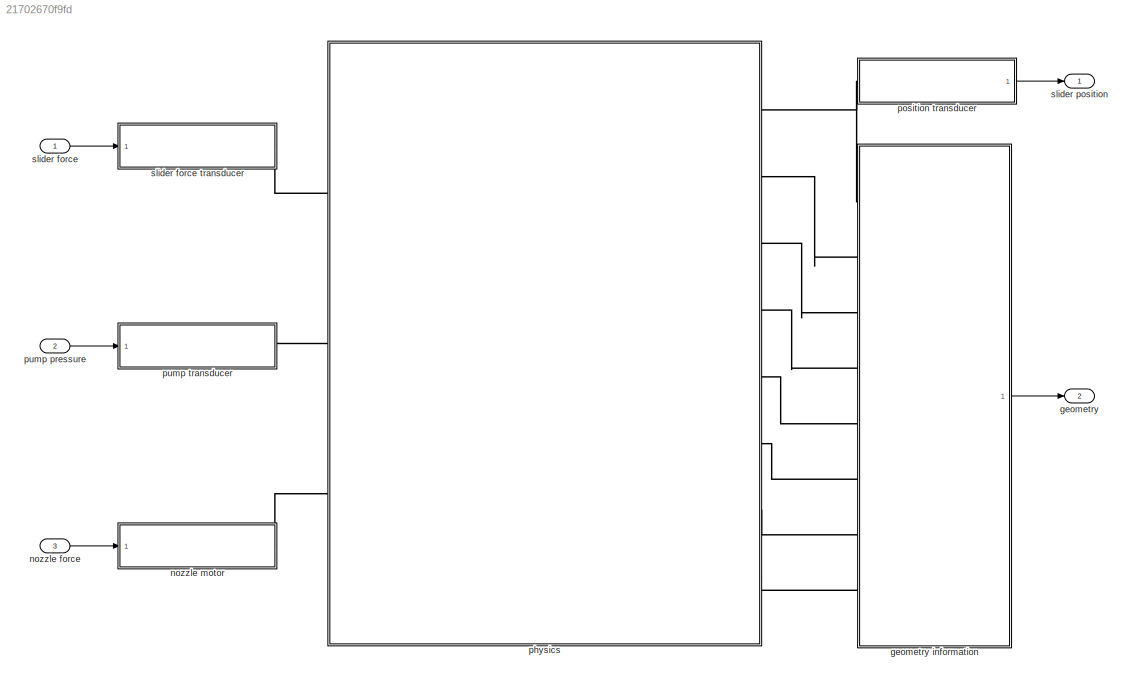
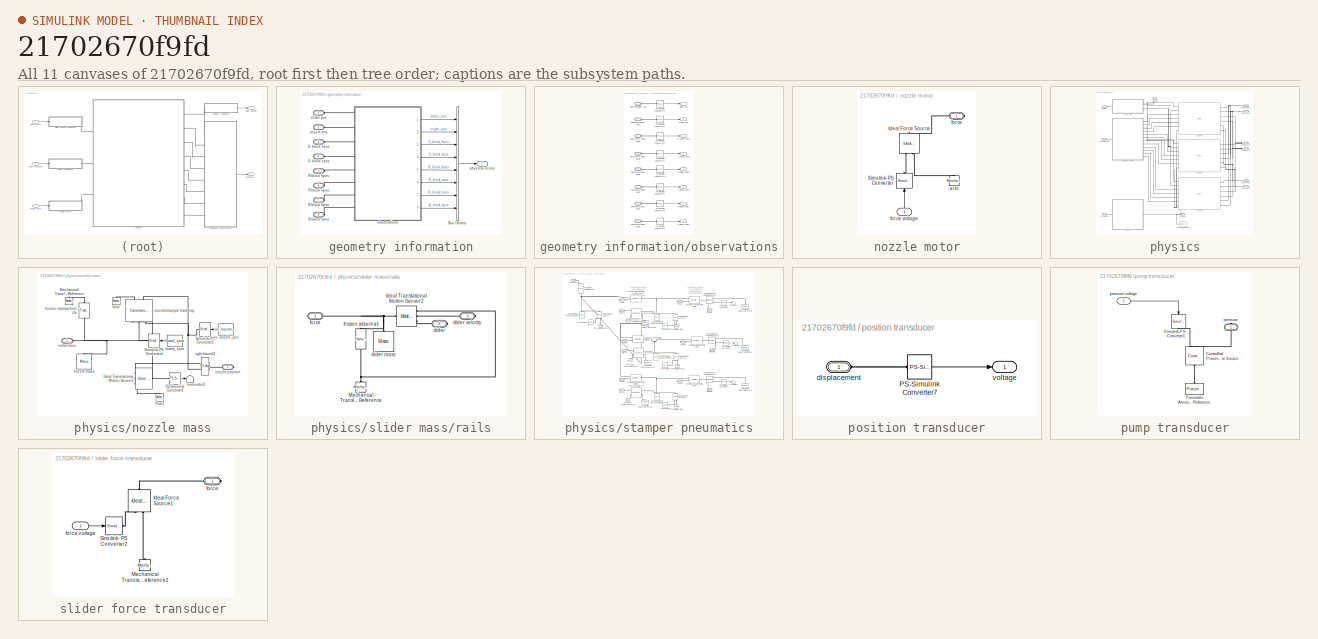
[diagram: thumbnail index - all 11 canvases of the model, root first then tree order]
MODEL slx_21702670f9fd
KIND model
WORKSPACE source: MAT-file member
WORKSPACE nozzle_radius = 0.06
BLOCK [Outport] geometry
  BusOutputAsStruct = on
  IconDisplay = Port number
  OutDataTypeStr = Bus: slBusGeometry
  Port = 2
BLOCK [SubSystem] geometry information
  FunctionWithSeparateData = off
  MaskHideContents = off
  MinAlgLoopOccurrences = off
  Opaque = off
  Ports = [0, 1, 0, 0, 0, 8]
  PropExecContextOutsideSubsystem = off
  RTWSystemCode = Auto
  RequestExecContextInheritance = off
BLOCK [PMIOPort] geometry information/B block hpos
  Port = 7
  Side = Left
BLOCK [PMIOPort] geometry information/B block vpos
  Port = 8
  Side = Left
BLOCK [BusCreator] geometry information/Bus Creator
  DisplayOption = bar
  Inputs = 'slider_pos','nozzle_pos','G_block_hpos','G_block_vpos','R_block_hpos','R_block_vpos','B_block_hpos','B_block_vpos'
  Ports = [8, 1]
BLOCK [PMIOPort] geometry information/G block hpos
  Port = 3
  Side = Left
BLOCK [PMIOPort] geometry information/G block vpos
  Port = 4
  Side = Left
BLOCK [PMIOPort] geometry information/R block hpos
  Port = 5
  Side = Left
BLOCK [PMIOPort] geometry information/R block vpos
  Port = 6
  Side = Left
BLOCK [PMIOPort] geometry information/nozzle pos
  Port = 2
  Side = Left
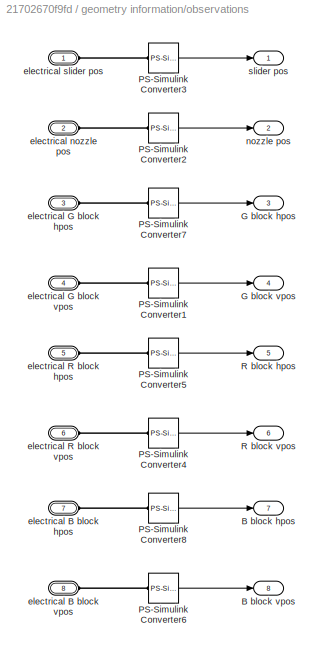
BLOCK [SubSystem] geometry information/observations
  FunctionWithSeparateData = off
  MaskHideContents = off
  MinAlgLoopOccurrences = off
  Opaque = off
  Ports = [0, 8, 0, 0, 0, 8]
  PropExecContextOutsideSubsystem = off
  RTWSystemCode = Auto
  RequestExecContextInheritance = off
BLOCK [Outport] geometry information/observations/B block hpos
  IconDisplay = Port number
  Port = 7
BLOCK [Outport] geometry information/observations/B block vpos
  IconDisplay = Port number
  Port = 8
BLOCK [Outport] geometry information/observations/G block hpos
  IconDisplay = Port number
  Port = 3
BLOCK [Outport] geometry information/observations/G block vpos
  IconDisplay = Port number
  Port = 4
BLOCK [Reference] geometry information/observations/PS-Simulink Converter1  REF=nesl_utility/PS-Simulink
Converter
  AffineConversion = off
  Frequencies = []
  LeftPortType = input
  PhysicalDomain = network_engine_domain
  Ports = [0, 1, 0, 0, 0, 1]
  PseudoPeriodic = off
  RightPortType = output
  SourceBlock = nesl_utility/PS-Simulink\nConverter
  SourceType = PS-Simulink\nConverter
  SubClassName = ps_output
  Unit = 1
BLOCK [Reference] geometry information/observations/PS-Simulink Converter2  REF=nesl_utility/PS-Simulink
Converter
  AffineConversion = off
  Frequencies = []
  LeftPortType = input
  PhysicalDomain = network_engine_domain
  Ports = [0, 1, 0, 0, 0, 1]
  PseudoPeriodic = off
  RightPortType = output
  SourceBlock = nesl_utility/PS-Simulink\nConverter
  SourceType = PS-Simulink\nConverter
  SubClassName = ps_output
  Unit = 1
BLOCK [Reference] geometry information/observations/PS-Simulink Converter3  REF=nesl_utility/PS-Simulink
Converter
  AffineConversion = off
  Frequencies = []
  LeftPortType = input
  PhysicalDomain = network_engine_domain
  Ports = [0, 1, 0, 0, 0, 1]
  PseudoPeriodic = off
  RightPortType = output
  SourceBlock = nesl_utility/PS-Simulink\nConverter
  SourceType = PS-Simulink\nConverter
  SubClassName = ps_output
  Unit = 1
BLOCK [Reference] geometry information/observations/PS-Simulink Converter4  REF=nesl_utility/PS-Simulink
Converter
  AffineConversion = off
  Frequencies = []
  LeftPortType = input
  PhysicalDomain = network_engine_domain
  Ports = [0, 1, 0, 0, 0, 1]
  PseudoPeriodic = off
  RightPortType = output
  SourceBlock = nesl_utility/PS-Simulink\nConverter
  SourceType = PS-Simulink\nConverter
  SubClassName = ps_output
  Unit = 1
BLOCK [Reference] geometry information/observations/PS-Simulink Converter5  REF=nesl_utility/PS-Simulink
Converter
  AffineConversion = off
  Frequencies = []
  LeftPortType = input
  PhysicalDomain = network_engine_domain
  Ports = [0, 1, 0, 0, 0, 1]
  PseudoPeriodic = off
  RightPortType = output
  SourceBlock = nesl_utility/PS-Simulink\nConverter
  SourceType = PS-Simulink\nConverter
  SubClassName = ps_output
  Unit = 1
BLOCK [Reference] geometry information/observations/PS-Simulink Converter6  REF=nesl_utility/PS-Simulink
Converter
  AffineConversion = off
  Frequencies = []
  LeftPortType = input
  PhysicalDomain = network_engine_domain
  Ports = [0, 1, 0, 0, 0, 1]
  PseudoPeriodic = off
  RightPortType = output
  SourceBlock = nesl_utility/PS-Simulink\nConverter
  SourceType = PS-Simulink\nConverter
  SubClassName = ps_output
  Unit = 1
BLOCK [Reference] geometry information/observations/PS-Simulink Converter7  REF=nesl_utility/PS-Simulink
Converter
  AffineConversion = off
  Frequencies = []
  LeftPortType = input
  PhysicalDomain = network_engine_domain
  Ports = [0, 1, 0, 0, 0, 1]
  PseudoPeriodic = off
  RightPortType = output
  SourceBlock = nesl_utility/PS-Simulink\nConverter
  SourceType = PS-Simulink\nConverter
  SubClassName = ps_output
  Unit = 1
BLOCK [Reference] geometry information/observations/PS-Simulink Converter8  REF=nesl_utility/PS-Simulink
Converter
  AffineConversion = off
  Frequencies = []
  LeftPortType = input
  PhysicalDomain = network_engine_domain
  Ports = [0, 1, 0, 0, 0, 1]
  PseudoPeriodic = off
  RightPortType = output
  SourceBlock = nesl_utility/PS-Simulink\nConverter
  SourceType = PS-Simulink\nConverter
  SubClassName = ps_output
  Unit = 1
BLOCK [Outport] geometry information/observations/R block hpos
  IconDisplay = Port number
  Port = 5
BLOCK [Outport] geometry information/observations/R block vpos
  IconDisplay = Port number
  Port = 6
BLOCK [PMIOPort] geometry information/observations/electrical B block hpos
  Port = 7
  Side = Left
BLOCK [PMIOPort] geometry information/observations/electrical B block vpos
  Port = 8
  Side = Left
BLOCK [PMIOPort] geometry information/observations/electrical G block hpos
  Port = 3
  Side = Left
BLOCK [PMIOPort] geometry information/observations/electrical G block vpos
  Port = 4
  Side = Left
BLOCK [PMIOPort] geometry information/observations/electrical R block hpos
  Port = 5
  Side = Left
BLOCK [PMIOPort] geometry information/observations/electrical R block vpos
  Port = 6
  Side = Left
BLOCK [PMIOPort] geometry information/observations/electrical nozzle pos
  Port = 2
  Side = Left
BLOCK [PMIOPort] geometry information/observations/electrical slider pos
  Port = 1
  Side = Left
BLOCK [Outport] geometry information/observations/nozzle pos
  IconDisplay = Port number
  Port = 2
BLOCK [Outport] geometry information/observations/slider pos
  IconDisplay = Port number
BLOCK [Outport] geometry information/physical scene
  IconDisplay = Port number
  OutDataTypeStr = Bus: slBusGeometry
BLOCK [PMIOPort] geometry information/slider pos
  Port = 1
  Side = Left
BLOCK [Inport] nozzle force
  IconDisplay = Port number
  Port = 3
BLOCK [SubSystem] nozzle motor
  FunctionWithSeparateData = off
  MaskHideContents = off
  MinAlgLoopOccurrences = off
  Opaque = off
  Ports = [1, 0, 0, 0, 0, 0, 1]
  PropExecContextOutsideSubsystem = off
  RTWSystemCode = Auto
  RequestExecContextInheritance = off
BLOCK [Reference] nozzle motor/Ideal Force Source  REF=fl_lib/Mechanical/Mechanical Sources/Ideal Force Source
  ClassName = force
  ComponentPath = foundation.mechanical.sources.force
  ComponentVariantNames = force
  ComponentVariants = foundation.mechanical.sources.force
  LocalVarDescs = |v|f
  LocalVarLogging = [0 0]
  LocalVarNames = |v|f
  Ports = [0, 0, 0, 0, 0, 1, 2]
  SchemaVersion = 1
  SourceBlock = fl_lib/Mechanical/Mechanical Sources/Ideal Force Source
  SourceFile = foundation.mechanical.sources.force
  SourceType = Ideal Force Source
  f_Log = off
  v_Log = off
BLOCK [Reference] nozzle motor/Simulink-PS Converter  REF=nesl_utility/Simulink-PS
Converter
  AffineConversion = off
  Frequencies = []
  InputFilterTimeConstant = .001
  InputFiltering = off
  LeftPortType = input
  NoiseDistribution = none
  NoiseParameters = []
  PhysicalDomain = network_engine_domain
  Ports = [1, 0, 0, 0, 0, 0, 1]
  PseudoPeriodic = off
  RightPortType = output
  SimscapeFilterOrder = 1
  SourceBlock = nesl_utility/Simulink-PS\nConverter
  SourceType = Simulink-PS\nConverter
  SubClassName = ps_input
  UdotUserProvided = 0
  Unit = 1
BLOCK [Reference] nozzle motor/arm  REF=fl_lib/Mechanical/Translational
Elements/Mechanical
Translational
Reference
  ClassName = reference
  ComponentPath = foundation.mechanical.translational.reference
  ComponentVariantNames = reference
  ComponentVariants = foundation.mechanical.translational.reference
  LocalVarDescs = |f
  LocalVarLogging = 0
  LocalVarNames = |f
  Ports = [0, 0, 0, 0, 0, 1]
  SchemaVersion = 1
  SourceBlock = fl_lib/Mechanical/Translational\nElements/Mechanical\nTranslational\nReference
  SourceFile = foundation.mechanical.translational.reference
  SourceType = Mechanical\nTranslational\nReference
  f_Log = off
BLOCK [PMIOPort] nozzle motor/force
  Port = 1
  Side = Right
BLOCK [Inport] nozzle motor/force voltage
  IconDisplay = Port number
BLOCK [SubSystem] physics
  FunctionWithSeparateData = off
  MaskHideContents = off
  MinAlgLoopOccurrences = off
  Opaque = off
  OpenFcn = open_system(gcb,'force');
  Ports = [0, 0, 0, 0, 0, 3, 8]
  PropExecContextOutsideSubsystem = off
  RTWSystemCode = Auto
  RequestExecContextInheritance = off
BLOCK [PMIOPort] physics/B block vpos
  Port = 11
  Side = Right
BLOCK [PMIOPort] physics/G block hpos
  Port = 6
  Side = Right
BLOCK [PMIOPort] physics/G block vpos
  Port = 7
  Side = Right
BLOCK [PMIOPort] physics/R block hpos
  Port = 8
  Side = Right
BLOCK [PMIOPort] physics/R block vpos
  Port = 9
  Side = Right
BLOCK [Reference] physics/Solver Configuration  REF=nesl_utility/Solver
Configuration
  Accelerate = off
  DelaysMemoryBudget = 1024
  DoDC = off
  DoFixedCost = on
  EnableSwitchedLinearOptims = on
  FrequencyDomain = off
  Harmonics = []
  LeftPortType = input
  LinearAlgebra = Sparse
  LocalSolverChoice = NE_BACKWARD_EULER_ADVANCER
  LocalSolverSampleTime = .005
  MaxModeIter = 2
  MaxNonlinIter = 3
  PhysicalDomain = network_engine_domain
  Ports = [0, 0, 0, 0, 0, 0, 1]
  Profile = off
  ResidualTolerance = 1e-9
  RightPortType = generic
  SimulateNoise = off
  SourceBlock = nesl_utility/Solver\nConfiguration
  SourceType = Solver\nConfiguration
  SubClassName = solver
  Tones = []
  UseCCode = off
  UseLocalSampling = off
  UseLocalSolver = on
BLOCK [PMIOPort] physics/b block hpos
  Port = 10
  Side = Right
BLOCK [Reference] physics/block B  REF=cps_lib_v2/block  (lib defined in slx_b159750f0f55)
  Ports = [0, 0, 0, 0, 0, 7, 6]
  SourceBlock = cps_lib_v2/block
  ini_block_hpos = ini_B_block_hpos
  ini_block_vpos = ini_B_block_vpos
BLOCK [Reference] physics/block G  REF=cps_lib_v2/block  (lib defined in slx_b159750f0f55)
  Ports = [0, 0, 0, 0, 0, 7, 6]
  SourceBlock = cps_lib_v2/block
  ini_block_hpos = ini_G_block_hpos
  ini_block_vpos = ini_G_block_vpos
BLOCK [Reference] physics/block R  REF=cps_lib_v2/block  (lib defined in slx_b159750f0f55)
  Ports = [0, 0, 0, 0, 0, 7, 6]
  SourceBlock = cps_lib_v2/block
  ini_block_hpos = ini_R_block_hpos
  ini_block_vpos = ini_R_block_vpos
BLOCK [PMIOPort] physics/nozzle force
  Port = 3
  Side = Left
BLOCK [SubSystem] physics/nozzle mass
  FunctionWithSeparateData = off
  MaskHideContents = off
  MinAlgLoopOccurrences = off
  Opaque = off
  OpenFcn = open_system(gcb,'force');
  Ports = [0, 0, 0, 0, 0, 1, 1]
  PropExecContextOutsideSubsystem = off
  RTWSystemCode = Auto
  RequestExecContextInheritance = off
BLOCK [Reference] physics/nozzle mass/Ideal Translational Motion Sensor1  REF=fl_lib/Mechanical/Mechanical Sensors/Ideal Translational
Motion Sensor
  ClassName = velocity
  ComponentPath = foundation.mechanical.sensors.velocity
  ComponentVariantNames = velocity
  ComponentVariants = foundation.mechanical.sensors.velocity
  LocalVarDescs = |v|f|x
  LocalVarLogging = [0 0 0]
  LocalVarNames = |v|f|x
  Ports = [0, 0, 0, 0, 0, 1, 3]
  SchemaVersion = 1
  SourceBlock = fl_lib/Mechanical/Mechanical Sensors/Ideal Translational\nMotion Sensor
  SourceFile = foundation.mechanical.sensors.velocity
  SourceType = Ideal Translational\nMotion Sensor
  f_Log = off
  offset = 0
  offset_unit = m
  v_Log = off
  x_Log = off
BLOCK [Reference] physics/nozzle mass/Mechanical Translational Reference  REF=fl_lib/Mechanical/Translational
Elements/Mechanical
Translational
Reference
  ClassName = reference
  ComponentPath = foundation.mechanical.translational.reference
  ComponentVariantNames = reference
  ComponentVariants = foundation.mechanical.translational.reference
  LocalVarDescs = |f
  LocalVarLogging = 0
  LocalVarNames = |f
  Ports = [0, 0, 0, 0, 0, 1]
  SchemaVersion = 1
  SourceBlock = fl_lib/Mechanical/Translational\nElements/Mechanical\nTranslational\nReference
  SourceFile = foundation.mechanical.translational.reference
  SourceType = Mechanical\nTranslational\nReference
  f_Log = off
BLOCK [Reference] physics/nozzle mass/PS-Simulink Converter2  REF=nesl_utility/PS-Simulink
Converter
  AffineConversion = off
  Frequencies = []
  LeftPortType = input
  PhysicalDomain = network_engine_domain
  Ports = [0, 1, 0, 0, 0, 1]
  PseudoPeriodic = off
  RightPortType = output
  SourceBlock = nesl_utility/PS-Simulink\nConverter
  SourceType = PS-Simulink\nConverter
  SubClassName = ps_output
  Unit = 1
BLOCK [Reference] physics/nozzle mass/Simulink-PS Converter1  REF=nesl_utility/Simulink-PS
Converter
  AffineConversion = off
  Frequencies = []
  InputFilterTimeConstant = .001
  InputFiltering = off
  LeftPortType = input
  NoiseDistribution = none
  NoiseParameters = []
  PhysicalDomain = network_engine_domain
  Ports = [1, 0, 0, 0, 0, 0, 1]
  PseudoPeriodic = off
  RightPortType = output
  SimscapeFilterOrder = 1
  SourceBlock = nesl_utility/Simulink-PS\nConverter
  SourceType = Simulink-PS\nConverter
  SubClassName = ps_input
  UdotUserProvided = []
  Unit = 1
BLOCK [Reference] physics/nozzle mass/Simulink-PS Converter4  REF=nesl_utility/Simulink-PS
Converter
  AffineConversion = off
  Frequencies = []
  InputFilterTimeConstant = .001
  InputFiltering = off
  LeftPortType = input
  NoiseDistribution = none
  NoiseParameters = []
  PhysicalDomain = network_engine_domain
  Ports = [1, 0, 0, 0, 0, 0, 1]
  PseudoPeriodic = off
  RightPortType = output
  SimscapeFilterOrder = 1
  SourceBlock = nesl_utility/Simulink-PS\nConverter
  SourceType = Simulink-PS\nConverter
  SubClassName = ps_input
  UdotUserProvided = []
  Unit = 1
BLOCK [Terminator] physics/nozzle mass/Terminator2
BLOCK [Constant] physics/nozzle mass/board_vpos
  Value = board_vpos
BLOCK [Reference] physics/nozzle mass/floor  REF=fl_lib/Mechanical/Translational
Elements/Mechanical
Translational
Reference
  ClassName = reference
  ComponentPath = foundation.mechanical.translational.reference
  ComponentVariantNames = reference
  ComponentVariants = foundation.mechanical.translational.reference
  LocalVarDescs = |f
  LocalVarLogging = 0
  LocalVarNames = |f
  Ports = [0, 0, 0, 0, 0, 1]
  SchemaVersion = 1
  SourceBlock = fl_lib/Mechanical/Translational\nElements/Mechanical\nTranslational\nReference
  SourceFile = foundation.mechanical.translational.reference
  SourceType = Mechanical\nTranslational\nReference
  f_Log = off
BLOCK [Reference] physics/nozzle mass/floor1  REF=fl_lib/Mechanical/Translational
Elements/Mechanical
Translational
Reference
  ClassName = reference
  ComponentPath = foundation.mechanical.translational.reference
  ComponentVariantNames = reference
  ComponentVariants = foundation.mechanical.translational.reference
  LocalVarDescs = |f
  LocalVarLogging = 0
  LocalVarNames = |f
  Ports = [0, 0, 0, 0, 0, 1]
  SchemaVersion = 1
  SourceBlock = fl_lib/Mechanical/Translational\nElements/Mechanical\nTranslational\nReference
  SourceFile = foundation.mechanical.translational.reference
  SourceType = Mechanical\nTranslational\nReference
  f_Log = off
BLOCK [Reference] physics/nozzle mass/friction stamper//nozzle  REF=fl_lib/Mechanical/Translational
Elements/Translational Damper
  ClassName = damper
  ComponentPath = foundation.mechanical.translational.damper
  ComponentVariantNames = damper
  ComponentVariants = foundation.mechanical.translational.damper
  D = 100
  D_unit = N/(m/s)
  LocalVarDescs = |f|v
  LocalVarLogging = [0 0]
  LocalVarNames = |f|v
  Ports = [0, 0, 0, 0, 0, 1, 1]
  SchemaVersion = 1
  SourceBlock = fl_lib/Mechanical/Translational\nElements/Translational Damper
  SourceFile = foundation.mechanical.translational.damper
  SourceType = Translational Damper
  f_Log = off
  v_Log = off
BLOCK [Constant] physics/nozzle mass/ini_nozzle_pos
  Value = ini_nozzle_pos
BLOCK [PMIOPort] physics/nozzle mass/motor force
  Port = 2
  Side = Left
BLOCK [Reference] physics/nozzle mass/nozzle mass  REF=fl_lib/Mechanical/Translational
Elements/Mass
  ClassName = mass
  ComponentPath = foundation.mechanical.translational.mass
  ComponentVariantNames = mass
  ComponentVariants = foundation.mechanical.translational.mass
  LocalVarDescs = |f
  LocalVarLogging = 0
  LocalVarNames = |f
  Ports = [0, 0, 0, 0, 0, 1]
  SchemaVersion = 1
  SourceBlock = fl_lib/Mechanical/Translational\nElements/Mass
  SourceFile = foundation.mechanical.translational.mass
  SourceType = Mass
  f_Log = off
  initial_velocity = 0
  initial_velocity_unit = m/s
  mass = 0.5
  mass_unit = kg
BLOCK [PMIOPort] physics/nozzle mass/nozzle position
  Port = 1
  Side = Right
BLOCK [Reference] physics/nozzle mass/nozzle//stamper hardstop  REF=cps_physics_lib/Translational Hard
Stop With External
Initial Position
  ClassName = hardstop_external_ini
  ComponentPath = cps_physics.hardstop_external_ini
  ComponentVariantNames = hardstop_external_ini
  ComponentVariants = cps_physics.hardstop_external_ini
  D_low = 150
  D_low_unit = N/(m/s)
  D_up = 150
  D_up_unit = N/(m/s)
  LocalVarDescs = |f|v|x
  LocalVarLogging = [0 0 0]
  LocalVarNames = |f|v|x
  Ports = [0, 0, 0, 0, 0, 3, 2]
  SchemaVersion = 1
  SourceBlock = cps_physics_lib/Translational Hard\nStop With External\nInitial Position
  SourceFile = cps_physics.hardstop_external_ini
  SourceType = Translational Hard\nStop With External\nInitial Position
  f_Log = off
  stiff_low = 1e6
  stiff_low_unit = N/m
  stiff_up = 1e4
  stiff_up_unit = N/m
  v_Log = off
  x_Log = off
BLOCK [Reference] physics/nozzle mass/right bound1  REF=fl_lib/Physical Signals/Functions/PS Add
  ClassName = add
  ComponentPath = foundation.physical_signal.functions.add
  ComponentVariantNames = add
  ComponentVariants = foundation.physical_signal.functions.add
  LocalVarLogging = []
  Ports = [0, 0, 0, 0, 0, 2, 1]
  SchemaVersion = 1
  SourceBlock = fl_lib/Physical Signals/Functions/PS Add
  SourceFile = foundation.physical_signal.functions.add
  SourceType = PS Add
BLOCK [PMIOPort] physics/nozzle pos
  Port = 5
  Side = Right
BLOCK [PMIOPort] physics/pump pressure
  Port = 2
  Side = Left
BLOCK [PMIOPort] physics/slider force
  Port = 1
  Side = Left
BLOCK [SubSystem] physics/slider mass//rails
  FunctionWithSeparateData = off
  MaskHideContents = off
  MinAlgLoopOccurrences = off
  Opaque = off
  OpenFcn = open_system(gcb,'force');
  Ports = [0, 0, 0, 0, 0, 1, 2]
  PropExecContextOutsideSubsystem = off
  RTWSystemCode = Auto
  RequestExecContextInheritance = off
BLOCK [Reference] physics/slider mass//rails/Ideal Translational Motion Sensor2  REF=fl_lib/Mechanical/Mechanical Sensors/Ideal Translational
Motion Sensor
  ClassName = velocity
  ComponentPath = foundation.mechanical.sensors.velocity
  ComponentVariantNames = velocity
  ComponentVariants = foundation.mechanical.sensors.velocity
  LocalVarDescs = |v|f|x
  LocalVarLogging = [0 0 0]
  LocalVarNames = |v|f|x
  Ports = [0, 0, 0, 0, 0, 1, 3]
  SchemaVersion = 1
  SourceBlock = fl_lib/Mechanical/Mechanical Sensors/Ideal Translational\nMotion Sensor
  SourceFile = foundation.mechanical.sensors.velocity
  SourceType = Ideal Translational\nMotion Sensor
  f_Log = off
  offset = 0
  offset_unit = m
  v_Log = off
  x_Log = off
BLOCK [Reference] physics/slider mass//rails/Mechanical Translational Reference  REF=fl_lib/Mechanical/Translational
Elements/Mechanical
Translational
Reference
  ClassName = reference
  ComponentPath = foundation.mechanical.translational.reference
  ComponentVariantNames = reference
  ComponentVariants = foundation.mechanical.translational.reference
  LocalVarDescs = |f
  LocalVarLogging = 0
  LocalVarNames = |f
  Ports = [0, 0, 0, 0, 0, 1]
  SchemaVersion = 1
  SourceBlock = fl_lib/Mechanical/Translational\nElements/Mechanical\nTranslational\nReference
  SourceFile = foundation.mechanical.translational.reference
  SourceType = Mechanical\nTranslational\nReference
  f_Log = off
BLOCK [PMIOPort] physics/slider mass//rails/force
  Port = 1
  Side = Left
BLOCK [Reference] physics/slider mass//rails/friction slider//rail  REF=fl_lib/Mechanical/Translational
Elements/Translational
Friction
  ClassName = friction
  Col_frc = 2
  Col_frc_unit = N
  ComponentPath = foundation.mechanical.translational.friction
  ComponentVariantNames = friction
  ComponentVariants = foundation.mechanical.translational.friction
  LocalVarDescs = |f|v
  LocalVarLogging = [0 0]
  LocalVarNames = |f|v
  Ports = [0, 0, 0, 0, 0, 1, 1]
  SchemaVersion = 1
  SourceBlock = fl_lib/Mechanical/Translational\nElements/Translational\nFriction
  SourceFile = foundation.mechanical.translational.friction
  SourceType = Translational\nFriction
  brkwy_frc = 2.5
  brkwy_frc_unit = N
  f_Log = off
  trans_coef = 1
  trans_coef_unit = s/m
  v_Log = off
  vel_thr = 1e-5
  vel_thr_unit = m/s
  visc_coef = 10
  visc_coef_unit = N/(m/s)
BLOCK [PMIOPort] physics/slider mass//rails/slider
  Port = 2
  Side = Right
BLOCK [Reference] physics/slider mass//rails/slider mass  REF=fl_lib/Mechanical/Translational
Elements/Mass
  ClassName = mass
  ComponentPath = foundation.mechanical.translational.mass
  ComponentVariantNames = mass
  ComponentVariants = foundation.mechanical.translational.mass
  LocalVarDescs = |f
  LocalVarLogging = 0
  LocalVarNames = |f
  Ports = [0, 0, 0, 0, 0, 1]
  SchemaVersion = 1
  SourceBlock = fl_lib/Mechanical/Translational\nElements/Mass
  SourceFile = foundation.mechanical.translational.mass
  SourceType = Mass
  f_Log = off
  initial_velocity = 0
  initial_velocity_unit = m/s
  mass = 1
  mass_unit = kg
BLOCK [PMIOPort] physics/slider mass//rails/slider velocity
  Port = 3
  Side = Right
BLOCK [PMIOPort] physics/slider pos
  Port = 4
  Side = Right
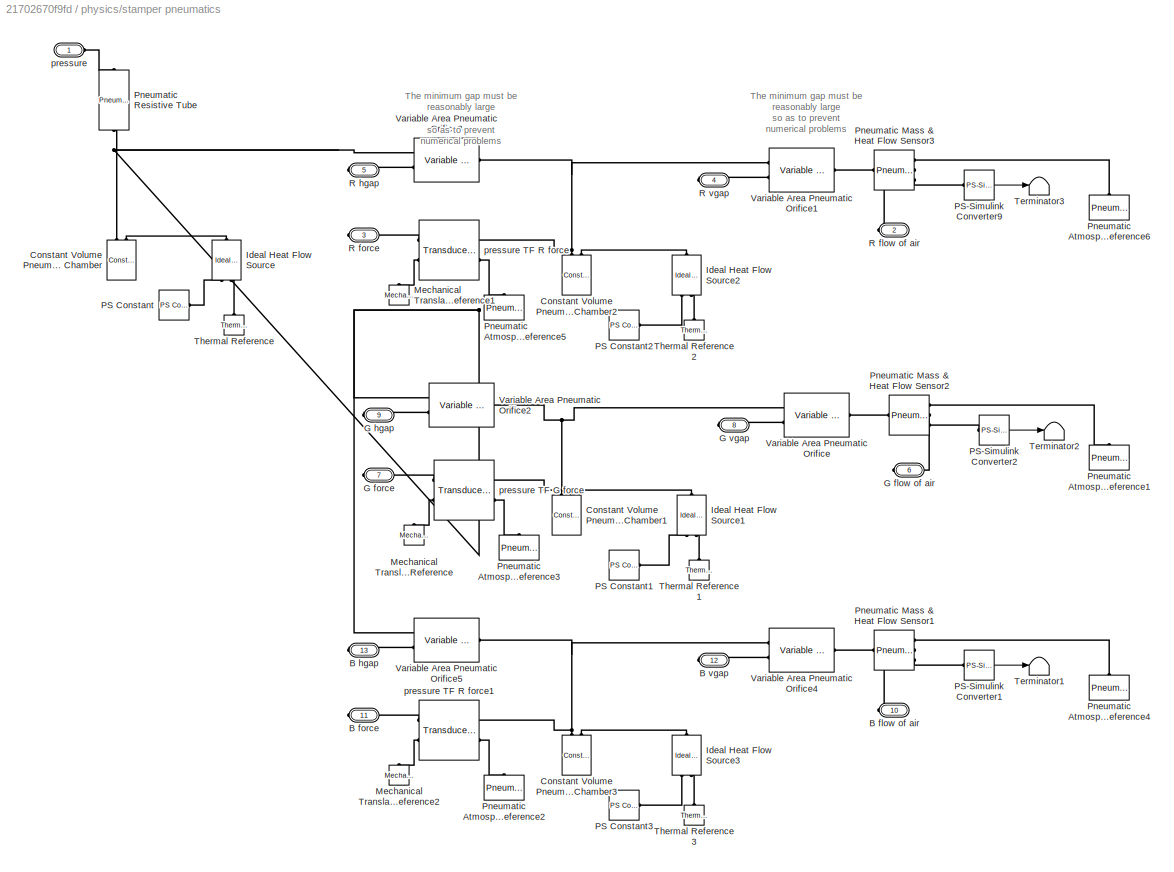
BLOCK [SubSystem] physics/stamper pneumatics
  FunctionWithSeparateData = off
  MaskHideContents = off
  MinAlgLoopOccurrences = off
  Opaque = off
  OpenFcn = open_system(gcb,'force');
  Ports = [0, 0, 0, 0, 0, 1, 12]
  PropExecContextOutsideSubsystem = off
  RTWSystemCode = Auto
  RequestExecContextInheritance = off
BLOCK [PMIOPort] physics/stamper pneumatics/B flow of air
  Port = 10
  Side = Right
BLOCK [PMIOPort] physics/stamper pneumatics/B force
  Port = 11
  Side = Right
BLOCK [PMIOPort] physics/stamper pneumatics/B hgap
  Port = 13
  Side = Right
BLOCK [PMIOPort] physics/stamper pneumatics/B vgap
  Port = 12
  Side = Right
BLOCK [Reference] physics/stamper pneumatics/Constant Volume Pneumatic Chamber  REF=fl_lib/Pneumatic/Pneumatic Elements/Constant Volume
Pneumatic Chamber
  ClassName = chamber
  ComponentPath = foundation.pneumatic.elements.chamber
  ComponentVariantNames = chamber
  ComponentVariants = foundation.pneumatic.elements.chamber
  LocalVarDescs = |gas_flow|heat_flow|pressure|temperature|heat_exch_flow|wall_temperature
  LocalVarLogging = [0 0 0 0 0 0]
  LocalVarNames = |gas_flow|heat_flow|pressure|temperature|heat_exch_flow|wall_temperature
  Ports = [0, 0, 0, 0, 0, 2]
  SchemaVersion = 1
  SourceBlock = fl_lib/Pneumatic/Pneumatic Elements/Constant Volume\nPneumatic Chamber
  SourceFile = foundation.pneumatic.elements.chamber
  SourceType = Constant Volume\nPneumatic Chamber
  T0 = 293.15
  T0_unit = K
  Volume = 7e-6
  Volume_unit = m^3
  gas_flow_Log = off
  gas_temperature_Log = off
  heat_exch_flow_Log = off
  heat_flow_Log = off
  p0 = 101325
  p0_unit = Pa
  pressure_Log = off
  temperature_Log = off
BLOCK [Reference] physics/stamper pneumatics/Constant Volume Pneumatic Chamber1  REF=fl_lib/Pneumatic/Pneumatic Elements/Constant Volume
Pneumatic Chamber
  ClassName = chamber
  ComponentPath = foundation.pneumatic.elements.chamber
  ComponentVariantNames = chamber
  ComponentVariants = foundation.pneumatic.elements.chamber
  LocalVarDescs = |gas_flow|heat_flow|pressure|temperature|heat_exch_flow|wall_temperature
  LocalVarLogging = [0 0 0 0 0 0]
  LocalVarNames = |gas_flow|heat_flow|pressure|temperature|heat_exch_flow|wall_temperature
  Ports = [0, 0, 0, 0, 0, 2]
  SchemaVersion = 1
  SourceBlock = fl_lib/Pneumatic/Pneumatic Elements/Constant Volume\nPneumatic Chamber
  SourceFile = foundation.pneumatic.elements.chamber
  SourceType = Constant Volume\nPneumatic Chamber
  T0 = 293.15
  T0_unit = K
  Volume = 14e-4
  Volume_unit = m^3
  gas_flow_Log = off
  gas_temperature_Log = off
  heat_exch_flow_Log = off
  heat_flow_Log = off
  p0 = 101325
  p0_unit = Pa
  pressure_Log = off
  temperature_Log = off
BLOCK [Reference] physics/stamper pneumatics/Constant Volume Pneumatic Chamber2  REF=fl_lib/Pneumatic/Pneumatic Elements/Constant Volume
Pneumatic Chamber
  ClassName = chamber
  ComponentPath = foundation.pneumatic.elements.chamber
  ComponentVariantNames = chamber
  ComponentVariants = foundation.pneumatic.elements.chamber
  LocalVarDescs = |gas_flow|heat_flow|pressure|temperature|heat_exch_flow|wall_temperature
  LocalVarLogging = [0 0 0 0 0 0]
  LocalVarNames = |gas_flow|heat_flow|pressure|temperature|heat_exch_flow|wall_temperature
  Ports = [0, 0, 0, 0, 0, 2]
  SchemaVersion = 1
  SourceBlock = fl_lib/Pneumatic/Pneumatic Elements/Constant Volume\nPneumatic Chamber
  SourceFile = foundation.pneumatic.elements.chamber
  SourceType = Constant Volume\nPneumatic Chamber
  T0 = 293.15
  T0_unit = K
  Volume = 14e-4
  Volume_unit = m^3
  gas_flow_Log = off
  gas_temperature_Log = off
  heat_exch_flow_Log = off
  heat_flow_Log = off
  p0 = 101325
  p0_unit = Pa
  pressure_Log = off
  temperature_Log = off
BLOCK [Reference] physics/stamper pneumatics/Constant Volume Pneumatic Chamber3  REF=fl_lib/Pneumatic/Pneumatic Elements/Constant Volume
Pneumatic Chamber
  ClassName = chamber
  ComponentPath = foundation.pneumatic.elements.chamber
  ComponentVariantNames = chamber
  ComponentVariants = foundation.pneumatic.elements.chamber
  LocalVarDescs = |gas_flow|heat_flow|pressure|temperature|heat_exch_flow|wall_temperature
  LocalVarLogging = [0 0 0 0 0 0]
  LocalVarNames = |gas_flow|heat_flow|pressure|temperature|heat_exch_flow|wall_temperature
  Ports = [0, 0, 0, 0, 0, 2]
  SchemaVersion = 1
  SourceBlock = fl_lib/Pneumatic/Pneumatic Elements/Constant Volume\nPneumatic Chamber
  SourceFile = foundation.pneumatic.elements.chamber
  SourceType = Constant Volume\nPneumatic Chamber
  T0 = 293.15
  T0_unit = K
  Volume = 14e-4
  Volume_unit = m^3
  gas_flow_Log = off
  gas_temperature_Log = off
  heat_exch_flow_Log = off
  heat_flow_Log = off
  p0 = 101325
  p0_unit = Pa
  pressure_Log = off
  temperature_Log = off
BLOCK [PMIOPort] physics/stamper pneumatics/G flow of air
  Port = 6
  Side = Right
BLOCK [PMIOPort] physics/stamper pneumatics/G force
  Port = 7
  Side = Right
BLOCK [PMIOPort] physics/stamper pneumatics/G hgap
  Port = 9
  Side = Right
BLOCK [PMIOPort] physics/stamper pneumatics/G vgap
  Port = 8
  Side = Right
BLOCK [Reference] physics/stamper pneumatics/Ideal Heat Flow Source  REF=fl_lib/Thermal/Thermal Sources/Ideal Heat Flow
Source
  ClassName = heat_flow
  ComponentPath = foundation.thermal.sources.heat_flow
  ComponentVariantNames = heat_flow
  ComponentVariants = foundation.thermal.sources.heat_flow
  LocalVarDescs = |Q|T
  LocalVarLogging = [0 0]
  LocalVarNames = |Q|T
  Ports = [0, 0, 0, 0, 0, 1, 2]
  Q_Log = off
  SchemaVersion = 1
  SourceBlock = fl_lib/Thermal/Thermal Sources/Ideal Heat Flow\nSource
  SourceFile = foundation.thermal.sources.heat_flow
  SourceType = Ideal Heat Flow\nSource
  T_Log = off
BLOCK [Reference] physics/stamper pneumatics/Ideal Heat Flow Source1  REF=fl_lib/Thermal/Thermal Sources/Ideal Heat Flow
Source
  ClassName = heat_flow
  ComponentPath = foundation.thermal.sources.heat_flow
  ComponentVariantNames = heat_flow
  ComponentVariants = foundation.thermal.sources.heat_flow
  LocalVarDescs = |Q|T
  LocalVarLogging = [0 0]
  LocalVarNames = |Q|T
  Ports = [0, 0, 0, 0, 0, 1, 2]
  Q_Log = off
  SchemaVersion = 1
  SourceBlock = fl_lib/Thermal/Thermal Sources/Ideal Heat Flow\nSource
  SourceFile = foundation.thermal.sources.heat_flow
  SourceType = Ideal Heat Flow\nSource
  T_Log = off
BLOCK [Reference] physics/stamper pneumatics/Ideal Heat Flow Source2  REF=fl_lib/Thermal/Thermal Sources/Ideal Heat Flow
Source
  ClassName = heat_flow
  ComponentPath = foundation.thermal.sources.heat_flow
  ComponentVariantNames = heat_flow
  ComponentVariants = foundation.thermal.sources.heat_flow
  LocalVarDescs = |Q|T
  LocalVarLogging = [0 0]
  LocalVarNames = |Q|T
  Ports = [0, 0, 0, 0, 0, 1, 2]
  Q_Log = off
  SchemaVersion = 1
  SourceBlock = fl_lib/Thermal/Thermal Sources/Ideal Heat Flow\nSource
  SourceFile = foundation.thermal.sources.heat_flow
  SourceType = Ideal Heat Flow\nSource
  T_Log = off
BLOCK [Reference] physics/stamper pneumatics/Ideal Heat Flow Source3  REF=fl_lib/Thermal/Thermal Sources/Ideal Heat Flow
Source
  ClassName = heat_flow
  ComponentPath = foundation.thermal.sources.heat_flow
  ComponentVariantNames = heat_flow
  ComponentVariants = foundation.thermal.sources.heat_flow
  LocalVarDescs = |Q|T
  LocalVarLogging = [0 0]
  LocalVarNames = |Q|T
  Ports = [0, 0, 0, 0, 0, 1, 2]
  Q_Log = off
  SchemaVersion = 1
  SourceBlock = fl_lib/Thermal/Thermal Sources/Ideal Heat Flow\nSource
  SourceFile = foundation.thermal.sources.heat_flow
  SourceType = Ideal Heat Flow\nSource
  T_Log = off
BLOCK [Reference] physics/stamper pneumatics/Mechanical Translational Reference  REF=fl_lib/Mechanical/Translational
Elements/Mechanical
Translational
Reference
  ClassName = reference
  ComponentPath = foundation.mechanical.translational.reference
  ComponentVariantNames = reference
  ComponentVariants = foundation.mechanical.translational.reference
  LocalVarDescs = |f
  LocalVarLogging = 0
  LocalVarNames = |f
  Ports = [0, 0, 0, 0, 0, 1]
  SchemaVersion = 1
  SourceBlock = fl_lib/Mechanical/Translational\nElements/Mechanical\nTranslational\nReference
  SourceFile = foundation.mechanical.translational.reference
  SourceType = Mechanical\nTranslational\nReference
  f_Log = off
BLOCK [Reference] physics/stamper pneumatics/Mechanical Translational Reference1  REF=fl_lib/Mechanical/Translational
Elements/Mechanical
Translational
Reference
  ClassName = reference
  ComponentPath = foundation.mechanical.translational.reference
  ComponentVariantNames = reference
  ComponentVariants = foundation.mechanical.translational.reference
  LocalVarDescs = |f
  LocalVarLogging = 0
  LocalVarNames = |f
  Ports = [0, 0, 0, 0, 0, 1]
  SchemaVersion = 1
  SourceBlock = fl_lib/Mechanical/Translational\nElements/Mechanical\nTranslational\nReference
  SourceFile = foundation.mechanical.translational.reference
  SourceType = Mechanical\nTranslational\nReference
  f_Log = off
BLOCK [Reference] physics/stamper pneumatics/Mechanical Translational Reference2  REF=fl_lib/Mechanical/Translational
Elements/Mechanical
Translational
Reference
  ClassName = reference
  ComponentPath = foundation.mechanical.translational.reference
  ComponentVariantNames = reference
  ComponentVariants = foundation.mechanical.translational.reference
  LocalVarDescs = |f
  LocalVarLogging = 0
  LocalVarNames = |f
  Ports = [0, 0, 0, 0, 0, 1]
  SchemaVersion = 1
  SourceBlock = fl_lib/Mechanical/Translational\nElements/Mechanical\nTranslational\nReference
  SourceFile = foundation.mechanical.translational.reference
  SourceType = Mechanical\nTranslational\nReference
  f_Log = off
BLOCK [Reference] physics/stamper pneumatics/PS Constant  REF=fl_lib/Physical Signals/Sources/PS Constant
  ClassName = constant
  ComponentPath = foundation.physical_signal.sources.constant
  ComponentVariantNames = constant
  ComponentVariants = foundation.physical_signal.sources.constant
  LocalVarLogging = []
  Ports = [0, 0, 0, 0, 0, 0, 1]
  SchemaVersion = 1
  SourceBlock = fl_lib/Physical Signals/Sources/PS Constant
  SourceFile = foundation.physical_signal.sources.constant
  SourceType = PS Constant
  constant = 0
  constant_unit = 1
BLOCK [Reference] physics/stamper pneumatics/PS Constant1  REF=fl_lib/Physical Signals/Sources/PS Constant
  ClassName = constant
  ComponentPath = foundation.physical_signal.sources.constant
  ComponentVariantNames = constant
  ComponentVariants = foundation.physical_signal.sources.constant
  LocalVarLogging = []
  Ports = [0, 0, 0, 0, 0, 0, 1]
  SchemaVersion = 1
  SourceBlock = fl_lib/Physical Signals/Sources/PS Constant
  SourceFile = foundation.physical_signal.sources.constant
  SourceType = PS Constant
  constant = 0
  constant_unit = 1
BLOCK [Reference] physics/stamper pneumatics/PS Constant2  REF=fl_lib/Physical Signals/Sources/PS Constant
  ClassName = constant
  ComponentPath = foundation.physical_signal.sources.constant
  ComponentVariantNames = constant
  ComponentVariants = foundation.physical_signal.sources.constant
  LocalVarLogging = []
  Ports = [0, 0, 0, 0, 0, 0, 1]
  SchemaVersion = 1
  SourceBlock = fl_lib/Physical Signals/Sources/PS Constant
  SourceFile = foundation.physical_signal.sources.constant
  SourceType = PS Constant
  constant = 0
  constant_unit = 1
BLOCK [Reference] physics/stamper pneumatics/PS Constant3  REF=fl_lib/Physical Signals/Sources/PS Constant
  ClassName = constant
  ComponentPath = foundation.physical_signal.sources.constant
  ComponentVariantNames = constant
  ComponentVariants = foundation.physical_signal.sources.constant
  LocalVarLogging = []
  Ports = [0, 0, 0, 0, 0, 0, 1]
  SchemaVersion = 1
  SourceBlock = fl_lib/Physical Signals/Sources/PS Constant
  SourceFile = foundation.physical_signal.sources.constant
  SourceType = PS Constant
  constant = 0
  constant_unit = 1
BLOCK [Reference] physics/stamper pneumatics/PS-Simulink Converter1  REF=nesl_utility/PS-Simulink
Converter
  AffineConversion = off
  Frequencies = []
  LeftPortType = input
  PhysicalDomain = network_engine_domain
  Ports = [0, 1, 0, 0, 0, 1]
  PseudoPeriodic = off
  RightPortType = output
  SourceBlock = nesl_utility/PS-Simulink\nConverter
  SourceType = PS-Simulink\nConverter
  SubClassName = ps_output
  Unit = 1
BLOCK [Reference] physics/stamper pneumatics/PS-Simulink Converter2  REF=nesl_utility/PS-Simulink
Converter
  AffineConversion = off
  Frequencies = []
  LeftPortType = input
  PhysicalDomain = network_engine_domain
  Ports = [0, 1, 0, 0, 0, 1]
  PseudoPeriodic = off
  RightPortType = output
  SourceBlock = nesl_utility/PS-Simulink\nConverter
  SourceType = PS-Simulink\nConverter
  SubClassName = ps_output
  Unit = 1
BLOCK [Reference] physics/stamper pneumatics/PS-Simulink Converter9  REF=nesl_utility/PS-Simulink
Converter
  AffineConversion = off
  Frequencies = []
  LeftPortType = input
  PhysicalDomain = network_engine_domain
  Ports = [0, 1, 0, 0, 0, 1]
  PseudoPeriodic = off
  RightPortType = output
  SourceBlock = nesl_utility/PS-Simulink\nConverter
  SourceType = PS-Simulink\nConverter
  SubClassName = ps_output
  Unit = 1
BLOCK [Reference] physics/stamper pneumatics/Pneumatic Atmospheric Reference1  REF=fl_lib/Pneumatic/Pneumatic Elements/Pneumatic
Atmospheric
Reference
  ClassName = atmospheric_reference
  ComponentPath = foundation.pneumatic.elements.atmospheric_reference
  ComponentVariantNames = atmospheric_reference
  ComponentVariants = foundation.pneumatic.elements.atmospheric_reference
  LocalVarDescs = |gas_flow|heat_flow
  LocalVarLogging = [0 0]
  LocalVarNames = |gas_flow|heat_flow
  Ports = [0, 0, 0, 0, 0, 1]
  SchemaVersion = 1
  SourceBlock = fl_lib/Pneumatic/Pneumatic Elements/Pneumatic\nAtmospheric\nReference
  SourceFile = foundation.pneumatic.elements.atmospheric_reference
  SourceType = Pneumatic\nAtmospheric\nReference
  gas_flow_Log = off
  heat_flow_Log = off
BLOCK [Reference] physics/stamper pneumatics/Pneumatic Atmospheric Reference2  REF=fl_lib/Pneumatic/Pneumatic Elements/Pneumatic
Atmospheric
Reference
  ClassName = atmospheric_reference
  ComponentPath = foundation.pneumatic.elements.atmospheric_reference
  ComponentVariantNames = atmospheric_reference
  ComponentVariants = foundation.pneumatic.elements.atmospheric_reference
  LocalVarDescs = |gas_flow|heat_flow
  LocalVarLogging = [0 0]
  LocalVarNames = |gas_flow|heat_flow
  Ports = [0, 0, 0, 0, 0, 1]
  SchemaVersion = 1
  SourceBlock = fl_lib/Pneumatic/Pneumatic Elements/Pneumatic\nAtmospheric\nReference
  SourceFile = foundation.pneumatic.elements.atmospheric_reference
  SourceType = Pneumatic\nAtmospheric\nReference
  gas_flow_Log = off
  heat_flow_Log = off
BLOCK [Reference] physics/stamper pneumatics/Pneumatic Atmospheric Reference3  REF=fl_lib/Pneumatic/Pneumatic Elements/Pneumatic
Atmospheric
Reference
  ClassName = atmospheric_reference
  ComponentPath = foundation.pneumatic.elements.atmospheric_reference
  ComponentVariantNames = atmospheric_reference
  ComponentVariants = foundation.pneumatic.elements.atmospheric_reference
  LocalVarDescs = |gas_flow|heat_flow
  LocalVarLogging = [0 0]
  LocalVarNames = |gas_flow|heat_flow
  Ports = [0, 0, 0, 0, 0, 1]
  SchemaVersion = 1
  SourceBlock = fl_lib/Pneumatic/Pneumatic Elements/Pneumatic\nAtmospheric\nReference
  SourceFile = foundation.pneumatic.elements.atmospheric_reference
  SourceType = Pneumatic\nAtmospheric\nReference
  gas_flow_Log = off
  heat_flow_Log = off
BLOCK [Reference] physics/stamper pneumatics/Pneumatic Atmospheric Reference4  REF=fl_lib/Pneumatic/Pneumatic Elements/Pneumatic
Atmospheric
Reference
  ClassName = atmospheric_reference
  ComponentPath = foundation.pneumatic.elements.atmospheric_reference
  ComponentVariantNames = atmospheric_reference
  ComponentVariants = foundation.pneumatic.elements.atmospheric_reference
  LocalVarDescs = |gas_flow|heat_flow
  LocalVarLogging = [0 0]
  LocalVarNames = |gas_flow|heat_flow
  Ports = [0, 0, 0, 0, 0, 1]
  SchemaVersion = 1
  SourceBlock = fl_lib/Pneumatic/Pneumatic Elements/Pneumatic\nAtmospheric\nReference
  SourceFile = foundation.pneumatic.elements.atmospheric_reference
  SourceType = Pneumatic\nAtmospheric\nReference
  gas_flow_Log = off
  heat_flow_Log = off
BLOCK [Reference] physics/stamper pneumatics/Pneumatic Atmospheric Reference5  REF=fl_lib/Pneumatic/Pneumatic Elements/Pneumatic
Atmospheric
Reference
  ClassName = atmospheric_reference
  ComponentPath = foundation.pneumatic.elements.atmospheric_reference
  ComponentVariantNames = atmospheric_reference
  ComponentVariants = foundation.pneumatic.elements.atmospheric_reference
  LocalVarDescs = |gas_flow|heat_flow
  LocalVarLogging = [0 0]
  LocalVarNames = |gas_flow|heat_flow
  Ports = [0, 0, 0, 0, 0, 1]
  SchemaVersion = 1
  SourceBlock = fl_lib/Pneumatic/Pneumatic Elements/Pneumatic\nAtmospheric\nReference
  SourceFile = foundation.pneumatic.elements.atmospheric_reference
  SourceType = Pneumatic\nAtmospheric\nReference
  gas_flow_Log = off
  heat_flow_Log = off
BLOCK [Reference] physics/stamper pneumatics/Pneumatic Atmospheric Reference6  REF=fl_lib/Pneumatic/Pneumatic Elements/Pneumatic
Atmospheric
Reference
  ClassName = atmospheric_reference
  ComponentPath = foundation.pneumatic.elements.atmospheric_reference
  ComponentVariantNames = atmospheric_reference
  ComponentVariants = foundation.pneumatic.elements.atmospheric_reference
  LocalVarDescs = |gas_flow|heat_flow
  LocalVarLogging = [0 0]
  LocalVarNames = |gas_flow|heat_flow
  Ports = [0, 0, 0, 0, 0, 1]
  SchemaVersion = 1
  SourceBlock = fl_lib/Pneumatic/Pneumatic Elements/Pneumatic\nAtmospheric\nReference
  SourceFile = foundation.pneumatic.elements.atmospheric_reference
  SourceType = Pneumatic\nAtmospheric\nReference
  gas_flow_Log = off
  heat_flow_Log = off
BLOCK [Reference] physics/stamper pneumatics/Pneumatic Mass & Heat Flow Sensor1  REF=fl_lib/Pneumatic/Pneumatic Sensors/Pneumatic Mass &
Heat Flow Sensor
  ClassName = mass_heat_flow
  ComponentPath = foundation.pneumatic.sensors.mass_heat_flow
  ComponentVariantNames = mass_heat_flow
  ComponentVariants = foundation.pneumatic.sensors.mass_heat_flow
  LocalVarDescs = |pressure_difference|gas_flow|temperature_difference|heat_flow
  LocalVarLogging = [0 0 0 0]
  LocalVarNames = |pressure_difference|gas_flow|temperature_difference|heat_flow
  Ports = [0, 0, 0, 0, 0, 1, 3]
  SchemaVersion = 1
  SourceBlock = fl_lib/Pneumatic/Pneumatic Sensors/Pneumatic Mass &\nHeat Flow Sensor
  SourceFile = foundation.pneumatic.sensors.mass_heat_flow
  SourceType = Pneumatic Mass &\nHeat Flow Sensor
  gas_flow_Log = off
  heat_flow_Log = off
  pressure_difference_Log = off
  temperature_difference_Log = off
BLOCK [Reference] physics/stamper pneumatics/Pneumatic Mass & Heat Flow Sensor2  REF=fl_lib/Pneumatic/Pneumatic Sensors/Pneumatic Mass &
Heat Flow Sensor
  ClassName = mass_heat_flow
  ComponentPath = foundation.pneumatic.sensors.mass_heat_flow
  ComponentVariantNames = mass_heat_flow
  ComponentVariants = foundation.pneumatic.sensors.mass_heat_flow
  LocalVarDescs = |pressure_difference|gas_flow|temperature_difference|heat_flow
  LocalVarLogging = [0 0 0 0]
  LocalVarNames = |pressure_difference|gas_flow|temperature_difference|heat_flow
  Ports = [0, 0, 0, 0, 0, 1, 3]
  SchemaVersion = 1
  SourceBlock = fl_lib/Pneumatic/Pneumatic Sensors/Pneumatic Mass &\nHeat Flow Sensor
  SourceFile = foundation.pneumatic.sensors.mass_heat_flow
  SourceType = Pneumatic Mass &\nHeat Flow Sensor
  gas_flow_Log = off
  heat_flow_Log = off
  pressure_difference_Log = off
  temperature_difference_Log = off
BLOCK [Reference] physics/stamper pneumatics/Pneumatic Mass & Heat Flow Sensor3  REF=fl_lib/Pneumatic/Pneumatic Sensors/Pneumatic Mass &
Heat Flow Sensor
  ClassName = mass_heat_flow
  ComponentPath = foundation.pneumatic.sensors.mass_heat_flow
  ComponentVariantNames = mass_heat_flow
  ComponentVariants = foundation.pneumatic.sensors.mass_heat_flow
  LocalVarDescs = |pressure_difference|gas_flow|temperature_difference|heat_flow
  LocalVarLogging = [0 0 0 0]
  LocalVarNames = |pressure_difference|gas_flow|temperature_difference|heat_flow
  Ports = [0, 0, 0, 0, 0, 1, 3]
  SchemaVersion = 1
  SourceBlock = fl_lib/Pneumatic/Pneumatic Sensors/Pneumatic Mass &\nHeat Flow Sensor
  SourceFile = foundation.pneumatic.sensors.mass_heat_flow
  SourceType = Pneumatic Mass &\nHeat Flow Sensor
  gas_flow_Log = off
  heat_flow_Log = off
  pressure_difference_Log = off
  temperature_difference_Log = off
BLOCK [Reference] physics/stamper pneumatics/Pneumatic Resistive Tube  REF=fl_lib/Pneumatic/Pneumatic Elements/Pneumatic Resistive
Tube
  ClassName = resistive_tube
  ComponentPath = foundation.pneumatic.elements.resistive_tube
  ComponentVariantNames = resistive_tube
  ComponentVariants = foundation.pneumatic.elements.resistive_tube
  Diameter = 1e-2
  Diameter_unit = m
  EquivalentLength = 0
  EquivalentLength_unit = m
  G_Log = off
  Length = 4e-2
  Length_unit = m
  LocalVarDescs = |G|Q1|Q2|p1|p2|T1|T2
  LocalVarLogging = [0 0 0 0 0 0 0]
  LocalVarNames = |G|Q1|Q2|p1|p2|T1|T2
  Ports = [0, 0, 0, 0, 0, 1, 1]
  Q1_Log = off
  Q2_Log = off
  Re_lam = 2300
  Re_lam_unit = 1
  Re_turb = 4000
  Re_turb_unit = 1
  Roughness = 1.5e-5
  Roughness_unit = m
  SchemaVersion = 1
  SourceBlock = fl_lib/Pneumatic/Pneumatic Elements/Pneumatic Resistive\nTube
  SourceFile = foundation.pneumatic.elements.resistive_tube
  SourceType = Pneumatic Resistive\nTube
  T1_Log = off
  T2_Log = off
  p1_Log = off
  p2_Log = off
BLOCK [PMIOPort] physics/stamper pneumatics/R flow of air
  Port = 2
  Side = Right
BLOCK [PMIOPort] physics/stamper pneumatics/R force
  Port = 3
  Side = Right
BLOCK [PMIOPort] physics/stamper pneumatics/R hgap
  Port = 5
  Side = Right
BLOCK [PMIOPort] physics/stamper pneumatics/R vgap
  Port = 4
  Side = Right
BLOCK [Terminator] physics/stamper pneumatics/Terminator1
BLOCK [Terminator] physics/stamper pneumatics/Terminator2
BLOCK [Terminator] physics/stamper pneumatics/Terminator3
BLOCK [Reference] physics/stamper pneumatics/Thermal Reference  REF=fl_lib/Thermal/Thermal Elements/Thermal Reference
  ClassName = reference
  ComponentPath = foundation.thermal.elements.reference
  ComponentVariantNames = reference
  ComponentVariants = foundation.thermal.elements.reference
  LocalVarDescs = |Q
  LocalVarLogging = 0
  LocalVarNames = |Q
  Ports = [0, 0, 0, 0, 0, 1]
  Q_Log = off
  SchemaVersion = 1
  SourceBlock = fl_lib/Thermal/Thermal Elements/Thermal Reference
  SourceFile = foundation.thermal.elements.reference
  SourceType = Thermal Reference
BLOCK [Reference] physics/stamper pneumatics/Thermal Reference1  REF=fl_lib/Thermal/Thermal Elements/Thermal Reference
  ClassName = reference
  ComponentPath = foundation.thermal.elements.reference
  ComponentVariantNames = reference
  ComponentVariants = foundation.thermal.elements.reference
  LocalVarDescs = |Q
  LocalVarLogging = 0
  LocalVarNames = |Q
  Ports = [0, 0, 0, 0, 0, 1]
  Q_Log = off
  SchemaVersion = 1
  SourceBlock = fl_lib/Thermal/Thermal Elements/Thermal Reference
  SourceFile = foundation.thermal.elements.reference
  SourceType = Thermal Reference
BLOCK [Reference] physics/stamper pneumatics/Thermal Reference2  REF=fl_lib/Thermal/Thermal Elements/Thermal Reference
  ClassName = reference
  ComponentPath = foundation.thermal.elements.reference
  ComponentVariantNames = reference
  ComponentVariants = foundation.thermal.elements.reference
  LocalVarDescs = |Q
  LocalVarLogging = 0
  LocalVarNames = |Q
  Ports = [0, 0, 0, 0, 0, 1]
  Q_Log = off
  SchemaVersion = 1
  SourceBlock = fl_lib/Thermal/Thermal Elements/Thermal Reference
  SourceFile = foundation.thermal.elements.reference
  SourceType = Thermal Reference
BLOCK [Reference] physics/stamper pneumatics/Thermal Reference3  REF=fl_lib/Thermal/Thermal Elements/Thermal Reference
  ClassName = reference
  ComponentPath = foundation.thermal.elements.reference
  ComponentVariantNames = reference
  ComponentVariants = foundation.thermal.elements.reference
  LocalVarDescs = |Q
  LocalVarLogging = 0
  LocalVarNames = |Q
  Ports = [0, 0, 0, 0, 0, 1]
  Q_Log = off
  SchemaVersion = 1
  SourceBlock = fl_lib/Thermal/Thermal Elements/Thermal Reference
  SourceFile = foundation.thermal.elements.reference
  SourceType = Thermal Reference
BLOCK [Reference] physics/stamper pneumatics/Variable Area Pneumatic Orifice  REF=fl_lib/Pneumatic/Pneumatic Elements/Variable Area
Pneumatic Orifice
  Area0 = 4e-3
  Area0_unit = m^2
  Cd = 0.82
  Cd_unit = 1
  ClassName = variable_orifice
  ComponentPath = foundation.pneumatic.elements.variable_orifice
  ComponentVariantNames = variable_orifice
  ComponentVariants = foundation.pneumatic.elements.variable_orifice
  G_Log = off
  LocalVarDescs = |G|Q1|Q2|p1|p2|T1|T2
  LocalVarLogging = [0 0 0 0 0 0 0]
  LocalVarNames = |G|Q1|Q2|p1|p2|T1|T2
  Ports = [0, 0, 0, 0, 0, 2, 1]
  Q1_Log = off
  Q2_Log = off
  SchemaVersion = 1
  SourceBlock = fl_lib/Pneumatic/Pneumatic Elements/Variable Area\nPneumatic Orifice
  SourceFile = foundation.pneumatic.elements.variable_orifice
  SourceType = Variable Area\nPneumatic Orifice
  T1_Log = off
  T2_Log = off
  p1_Log = off
  p2_Log = off
BLOCK [Reference] physics/stamper pneumatics/Variable Area Pneumatic Orifice1  REF=fl_lib/Pneumatic/Pneumatic Elements/Variable Area
Pneumatic Orifice
  Area0 = 4e-3
  Area0_unit = m^2
  Cd = 0.82
  Cd_unit = 1
  ClassName = variable_orifice
  ComponentPath = foundation.pneumatic.elements.variable_orifice
  ComponentVariantNames = variable_orifice
  ComponentVariants = foundation.pneumatic.elements.variable_orifice
  G_Log = off
  LocalVarDescs = |G|Q1|Q2|p1|p2|T1|T2
  LocalVarLogging = [0 0 0 0 0 0 0]
  LocalVarNames = |G|Q1|Q2|p1|p2|T1|T2
  Ports = [0, 0, 0, 0, 0, 2, 1]
  Q1_Log = off
  Q2_Log = off
  SchemaVersion = 1
  SourceBlock = fl_lib/Pneumatic/Pneumatic Elements/Variable Area\nPneumatic Orifice
  SourceFile = foundation.pneumatic.elements.variable_orifice
  SourceType = Variable Area\nPneumatic Orifice
  T1_Log = off
  T2_Log = off
  p1_Log = off
  p2_Log = off
BLOCK [Reference] physics/stamper pneumatics/Variable Area Pneumatic Orifice2  REF=fl_lib/Pneumatic/Pneumatic Elements/Variable Area
Pneumatic Orifice
  Area0 = 1e-4
  Area0_unit = m^2
  Cd = 0.82
  Cd_unit = 1
  ClassName = variable_orifice
  ComponentPath = foundation.pneumatic.elements.variable_orifice
  ComponentVariantNames = variable_orifice
  ComponentVariants = foundation.pneumatic.elements.variable_orifice
  G_Log = off
  LocalVarDescs = |G|Q1|Q2|p1|p2|T1|T2
  LocalVarLogging = [0 0 0 0 0 0 0]
  LocalVarNames = |G|Q1|Q2|p1|p2|T1|T2
  Ports = [0, 0, 0, 0, 0, 2, 1]
  Q1_Log = off
  Q2_Log = off
  SchemaVersion = 1
  SourceBlock = fl_lib/Pneumatic/Pneumatic Elements/Variable Area\nPneumatic Orifice
  SourceFile = foundation.pneumatic.elements.variable_orifice
  SourceType = Variable Area\nPneumatic Orifice
  T1_Log = off
  T2_Log = off
  p1_Log = off
  p2_Log = off
BLOCK [Reference] physics/stamper pneumatics/Variable Area Pneumatic Orifice3  REF=fl_lib/Pneumatic/Pneumatic Elements/Variable Area
Pneumatic Orifice
  Area0 = 1e-4
  Area0_unit = m^2
  Cd = 0.82
  Cd_unit = 1
  ClassName = variable_orifice
  ComponentPath = foundation.pneumatic.elements.variable_orifice
  ComponentVariantNames = variable_orifice
  ComponentVariants = foundation.pneumatic.elements.variable_orifice
  G_Log = off
  LocalVarDescs = |G|Q1|Q2|p1|p2|T1|T2
  LocalVarLogging = [0 0 0 0 0 0 0]
  LocalVarNames = |G|Q1|Q2|p1|p2|T1|T2
  Ports = [0, 0, 0, 0, 0, 2, 1]
  Q1_Log = off
  Q2_Log = off
  SchemaVersion = 1
  SourceBlock = fl_lib/Pneumatic/Pneumatic Elements/Variable Area\nPneumatic Orifice
  SourceFile = foundation.pneumatic.elements.variable_orifice
  SourceType = Variable Area\nPneumatic Orifice
  T1_Log = off
  T2_Log = off
  p1_Log = off
  p2_Log = off
BLOCK [Reference] physics/stamper pneumatics/Variable Area Pneumatic Orifice4  REF=fl_lib/Pneumatic/Pneumatic Elements/Variable Area
Pneumatic Orifice
  Area0 = 4e-3
  Area0_unit = m^2
  Cd = 0.82
  Cd_unit = 1
  ClassName = variable_orifice
  ComponentPath = foundation.pneumatic.elements.variable_orifice
  ComponentVariantNames = variable_orifice
  ComponentVariants = foundation.pneumatic.elements.variable_orifice
  G_Log = off
  LocalVarDescs = |G|Q1|Q2|p1|p2|T1|T2
  LocalVarLogging = [0 0 0 0 0 0 0]
  LocalVarNames = |G|Q1|Q2|p1|p2|T1|T2
  Ports = [0, 0, 0, 0, 0, 2, 1]
  Q1_Log = off
  Q2_Log = off
  SchemaVersion = 1
  SourceBlock = fl_lib/Pneumatic/Pneumatic Elements/Variable Area\nPneumatic Orifice
  SourceFile = foundation.pneumatic.elements.variable_orifice
  SourceType = Variable Area\nPneumatic Orifice
  T1_Log = off
  T2_Log = off
  p1_Log = off
  p2_Log = off
BLOCK [Reference] physics/stamper pneumatics/Variable Area Pneumatic Orifice5  REF=fl_lib/Pneumatic/Pneumatic Elements/Variable Area
Pneumatic Orifice
  Area0 = 1e-4
  Area0_unit = m^2
  Cd = 0.82
  Cd_unit = 1
  ClassName = variable_orifice
  ComponentPath = foundation.pneumatic.elements.variable_orifice
  ComponentVariantNames = variable_orifice
  ComponentVariants = foundation.pneumatic.elements.variable_orifice
  G_Log = off
  LocalVarDescs = |G|Q1|Q2|p1|p2|T1|T2
  LocalVarLogging = [0 0 0 0 0 0 0]
  LocalVarNames = |G|Q1|Q2|p1|p2|T1|T2
  Ports = [0, 0, 0, 0, 0, 2, 1]
  Q1_Log = off
  Q2_Log = off
  SchemaVersion = 1
  SourceBlock = fl_lib/Pneumatic/Pneumatic Elements/Variable Area\nPneumatic Orifice
  SourceFile = foundation.pneumatic.elements.variable_orifice
  SourceType = Variable Area\nPneumatic Orifice
  T1_Log = off
  T2_Log = off
  p1_Log = off
  p2_Log = off
BLOCK [PMIOPort] physics/stamper pneumatics/pressure
  Port = 1
  Side = Left
BLOCK [Reference] physics/stamper pneumatics/pressure TF G force  REF=cps_physics_lib/Transducer Between
Force and Pressure
  ClassName = pressure_force_transducer
  ComponentPath = cps_physics.pressure_force_transducer
  ComponentVariantNames = pressure_force_transducer
  ComponentVariants = cps_physics.pressure_force_transducer
  G1_Log = off
  LocalVarDescs = |p1|f2|G1|v2|T1|Q1|heat_flow
  LocalVarLogging = [0 0 0 0 0 0 0]
  LocalVarNames = |p1|f2|G1|v2|T1|Q1|heat_flow
  Ports = [0, 0, 0, 0, 0, 2, 2]
  Q1_Log = off
  SchemaVersion = 1
  SourceBlock = cps_physics_lib/Transducer Between\nForce and Pressure
  SourceFile = cps_physics.pressure_force_transducer
  SourceType = Transducer Between\nForce and Pressure
  T1_Log = off
  area = -pi*nozzle_radius*nozzle_radius
  area_unit = 1
  f2_Log = off
  heat_flow_Log = off
  p1_Log = off
  v2_Log = off
BLOCK [Reference] physics/stamper pneumatics/pressure TF R force  REF=cps_physics_lib/Transducer Between
Force and Pressure
  ClassName = pressure_force_transducer
  ComponentPath = cps_physics.pressure_force_transducer
  ComponentVariantNames = pressure_force_transducer
  ComponentVariants = cps_physics.pressure_force_transducer
  G1_Log = off
  LocalVarDescs = |p1|f2|G1|v2|T1|Q1|heat_flow
  LocalVarLogging = [0 0 0 0 0 0 0]
  LocalVarNames = |p1|f2|G1|v2|T1|Q1|heat_flow
  Ports = [0, 0, 0, 0, 0, 2, 2]
  Q1_Log = off
  SchemaVersion = 1
  SourceBlock = cps_physics_lib/Transducer Between\nForce and Pressure
  SourceFile = cps_physics.pressure_force_transducer
  SourceType = Transducer Between\nForce and Pressure
  T1_Log = off
  area = -pi*nozzle_radius*nozzle_radius
  area_unit = 1
  f2_Log = off
  heat_flow_Log = off
  p1_Log = off
  v2_Log = off
BLOCK [Reference] physics/stamper pneumatics/pressure TF R force1  REF=cps_physics_lib/Transducer Between
Force and Pressure
  ClassName = pressure_force_transducer
  ComponentPath = cps_physics.pressure_force_transducer
  ComponentVariantNames = pressure_force_transducer
  ComponentVariants = cps_physics.pressure_force_transducer
  G1_Log = off
  LocalVarDescs = |p1|f2|G1|v2|T1|Q1|heat_flow
  LocalVarLogging = [0 0 0 0 0 0 0]
  LocalVarNames = |p1|f2|G1|v2|T1|Q1|heat_flow
  Ports = [0, 0, 0, 0, 0, 2, 2]
  Q1_Log = off
  SchemaVersion = 1
  SourceBlock = cps_physics_lib/Transducer Between\nForce and Pressure
  SourceFile = cps_physics.pressure_force_transducer
  SourceType = Transducer Between\nForce and Pressure
  T1_Log = off
  area = -pi*nozzle_radius*nozzle_radius
  area_unit = 1
  f2_Log = off
  heat_flow_Log = off
  p1_Log = off
  v2_Log = off
BLOCK [SubSystem] position transducer
  FunctionWithSeparateData = off
  MaskHideContents = off
  MinAlgLoopOccurrences = off
  Opaque = off
  Ports = [0, 1, 0, 0, 0, 1]
  PropExecContextOutsideSubsystem = off
  RTWSystemCode = Auto
  RequestExecContextInheritance = off
BLOCK [Reference] position transducer/PS-Simulink Converter7  REF=nesl_utility/PS-Simulink
Converter
  AffineConversion = off
  Frequencies = []
  LeftPortType = input
  PhysicalDomain = network_engine_domain
  Ports = [0, 1, 0, 0, 0, 1]
  PseudoPeriodic = off
  RightPortType = output
  SourceBlock = nesl_utility/PS-Simulink\nConverter
  SourceType = PS-Simulink\nConverter
  SubClassName = ps_output
  Unit = 1
BLOCK [PMIOPort] position transducer/displacement
  Port = 1
  Side = Left
BLOCK [Outport] position transducer/voltage
  IconDisplay = Port number
BLOCK [Inport] pump pressure
  IconDisplay = Port number
  Port = 2
BLOCK [SubSystem] pump transducer
  FunctionWithSeparateData = off
  MaskHideContents = off
  MinAlgLoopOccurrences = off
  Opaque = off
  Ports = [1, 0, 0, 0, 0, 0, 1]
  PropExecContextOutsideSubsystem = off
  RTWSystemCode = Auto
  RequestExecContextInheritance = off
BLOCK [Reference] pump transducer/Controlled Pneumatic Pressure Source  REF=fl_lib/Pneumatic/Pneumatic Sources/Controlled Pneumatic
Pressure Source
  ClassName = controlled_pressure
  ComponentPath = foundation.pneumatic.sources.controlled_pressure
  ComponentVariantNames = controlled_pressure
  ComponentVariants = foundation.pneumatic.sources.controlled_pressure
  LocalVarDescs = |pressure_difference|gas_flow|temperature_difference|heat_flow
  LocalVarLogging = [0 0 0 0]
  LocalVarNames = |pressure_difference|gas_flow|temperature_difference|heat_flow
  Ports = [0, 0, 0, 0, 0, 1, 2]
  SchemaVersion = 1
  SourceBlock = fl_lib/Pneumatic/Pneumatic Sources/Controlled Pneumatic\nPressure Source
  SourceFile = foundation.pneumatic.sources.controlled_pressure
  SourceType = Controlled Pneumatic\nPressure Source
  gas_flow_Log = off
  heat_flow_Log = off
  pressure_difference_Log = off
  temperature_difference_Log = off
BLOCK [Reference] pump transducer/Pneumatic Atmospheric Reference  REF=fl_lib/Pneumatic/Pneumatic Elements/Pneumatic
Atmospheric
Reference
  ClassName = atmospheric_reference
  ComponentPath = foundation.pneumatic.elements.atmospheric_reference
  ComponentVariantNames = atmospheric_reference
  ComponentVariants = foundation.pneumatic.elements.atmospheric_reference
  LocalVarDescs = |gas_flow|heat_flow
  LocalVarLogging = [0 0]
  LocalVarNames = |gas_flow|heat_flow
  Ports = [0, 0, 0, 0, 0, 1]
  SchemaVersion = 1
  SourceBlock = fl_lib/Pneumatic/Pneumatic Elements/Pneumatic\nAtmospheric\nReference
  SourceFile = foundation.pneumatic.elements.atmospheric_reference
  SourceType = Pneumatic\nAtmospheric\nReference
  gas_flow_Log = off
  heat_flow_Log = off
BLOCK [Reference] pump transducer/Simulink-PS Converter1  REF=nesl_utility/Simulink-PS
Converter
  AffineConversion = off
  Frequencies = []
  InputFilterTimeConstant = .001
  InputFiltering = off
  LeftPortType = input
  NoiseDistribution = none
  NoiseParameters = []
  PhysicalDomain = network_engine_domain
  Ports = [1, 0, 0, 0, 0, 0, 1]
  PseudoPeriodic = off
  RightPortType = output
  SimscapeFilterOrder = 1
  SourceBlock = nesl_utility/Simulink-PS\nConverter
  SourceType = Simulink-PS\nConverter
  SubClassName = ps_input
  UdotUserProvided = 0
  Unit = 1
BLOCK [PMIOPort] pump transducer/pressure
  Port = 1
  Side = Right
BLOCK [Inport] pump transducer/pressure voltage
  IconDisplay = Port number
BLOCK [Inport] slider force
  IconDisplay = Port number
  SampleTime = [0 1]
BLOCK [SubSystem] slider force transducer
  FunctionWithSeparateData = off
  MaskHideContents = off
  MinAlgLoopOccurrences = off
  Opaque = off
  Ports = [1, 0, 0, 0, 0, 0, 1]
  PropExecContextOutsideSubsystem = off
  RTWSystemCode = Auto
  RequestExecContextInheritance = off
BLOCK [Reference] slider force transducer/Ideal Force Source1  REF=fl_lib/Mechanical/Mechanical Sources/Ideal Force Source
  ClassName = force
  ComponentPath = foundation.mechanical.sources.force
  ComponentVariantNames = force
  ComponentVariants = foundation.mechanical.sources.force
  LocalVarDescs = |v|f
  LocalVarLogging = [0 0]
  LocalVarNames = |v|f
  Ports = [0, 0, 0, 0, 0, 1, 2]
  SchemaVersion = 1
  SourceBlock = fl_lib/Mechanical/Mechanical Sources/Ideal Force Source
  SourceFile = foundation.mechanical.sources.force
  SourceType = Ideal Force Source
  f_Log = off
  v_Log = off
BLOCK [Reference] slider force transducer/Mechanical Translational Reference2  REF=fl_lib/Mechanical/Translational
Elements/Mechanical
Translational
Reference
  ClassName = reference
  ComponentPath = foundation.mechanical.translational.reference
  ComponentVariantNames = reference
  ComponentVariants = foundation.mechanical.translational.reference
  LocalVarDescs = |f
  LocalVarLogging = 0
  LocalVarNames = |f
  Ports = [0, 0, 0, 0, 0, 1]
  SchemaVersion = 1
  SourceBlock = fl_lib/Mechanical/Translational\nElements/Mechanical\nTranslational\nReference
  SourceFile = foundation.mechanical.translational.reference
  SourceType = Mechanical\nTranslational\nReference
  f_Log = off
BLOCK [Reference] slider force transducer/Simulink-PS Converter2  REF=nesl_utility/Simulink-PS
Converter
  AffineConversion = off
  Frequencies = []
  InputFilterTimeConstant = .001
  InputFiltering = off
  LeftPortType = input
  NoiseDistribution = none
  NoiseParameters = []
  PhysicalDomain = network_engine_domain
  Ports = [1, 0, 0, 0, 0, 0, 1]
  PseudoPeriodic = off
  RightPortType = output
  SimscapeFilterOrder = 1
  SourceBlock = nesl_utility/Simulink-PS\nConverter
  SourceType = Simulink-PS\nConverter
  SubClassName = ps_input
  UdotUserProvided = 0
  Unit = 1
BLOCK [PMIOPort] slider force transducer/force
  Port = 1
  Side = Right
BLOCK [Inport] slider force transducer/force voltage
  IconDisplay = Port number
BLOCK [Outport] slider position
  IconDisplay = Port number
ANNOTATION physics/stamper pneumatics: The minimum gap must be reasonably large so as to prevent numerical problems
LINE geometry information/Bus Creator:1 -> geometry information/physical scene:1
LINE geometry information/observations/PS-Simulink Converter1:1 -> geometry information/observations/G block vpos:1
LINE geometry information/observations/PS-Simulink Converter2:1 -> geometry information/observations/nozzle pos:1
LINE geometry information/observations/PS-Simulink Converter3:1 -> geometry information/observations/slider pos:1
LINE geometry information/observations/PS-Simulink Converter4:1 -> geometry information/observations/R block vpos:1
LINE geometry information/observations/PS-Simulink Converter5:1 -> geometry information/observations/R block hpos:1
LINE geometry information/observations/PS-Simulink Converter6:1 -> geometry information/observations/B block vpos:1
LINE geometry information/observations/PS-Simulink Converter7:1 -> geometry information/observations/G block hpos:1
LINE geometry information/observations/PS-Simulink Converter8:1 -> geometry information/observations/B block hpos:1
LINE geometry information/observations:1 -> geometry information/Bus Creator:1
LINE geometry information/observations:2 -> geometry information/Bus Creator:2
LINE geometry information/observations:3 -> geometry information/Bus Creator:3
LINE geometry information/observations:4 -> geometry information/Bus Creator:4
LINE geometry information/observations:5 -> geometry information/Bus Creator:5
LINE geometry information/observations:6 -> geometry information/Bus Creator:6
LINE geometry information/observations:7 -> geometry information/Bus Creator:7
LINE geometry information/observations:8 -> geometry information/Bus Creator:8
LINE geometry information:1 -> geometry:1
LINE nozzle force:1 -> nozzle motor:1
LINE nozzle motor/force voltage:1 -> nozzle motor/Simulink-PS Converter:1
LINE physics/nozzle mass/PS-Simulink Converter2:1 -> physics/nozzle mass/Terminator2:1
LINE physics/nozzle mass/board_vpos:1 -> physics/nozzle mass/Simulink-PS Converter4:1
LINE physics/nozzle mass/ini_nozzle_pos:1 -> physics/nozzle mass/Simulink-PS Converter1:1
LINE physics/stamper pneumatics/PS-Simulink Converter1:1 -> physics/stamper pneumatics/Terminator1:1
LINE physics/stamper pneumatics/PS-Simulink Converter2:1 -> physics/stamper pneumatics/Terminator2:1
LINE physics/stamper pneumatics/PS-Simulink Converter9:1 -> physics/stamper pneumatics/Terminator3:1
LINE position transducer/PS-Simulink Converter7:1 -> position transducer/voltage:1
LINE position transducer:1 -> slider position:1
LINE pump pressure:1 -> pump transducer:1
LINE pump transducer/pressure voltage:1 -> pump transducer/Simulink-PS Converter1:1
LINE slider force transducer/force voltage:1 -> slider force transducer/Simulink-PS Converter2:1
LINE slider force:1 -> slider force transducer:1
PLINE geometry information/B block hpos:RConn1 -- geometry information/observations:LConn7
PLINE geometry information/B block vpos:RConn1 -- geometry information/observations:LConn8
PLINE geometry information/G block hpos:RConn1 -- geometry information/observations:LConn3
PLINE geometry information/G block vpos:RConn1 -- geometry information/observations:LConn4
PLINE geometry information/R block hpos:RConn1 -- geometry information/observations:LConn5
PLINE geometry information/R block vpos:RConn1 -- geometry information/observations:LConn6
PLINE geometry information/nozzle pos:RConn1 -- geometry information/observations:LConn2
PLINE geometry information/observations/PS-Simulink Converter1:LConn1 -- geometry information/observations/electrical G block vpos:RConn1
PLINE geometry information/observations/PS-Simulink Converter2:LConn1 -- geometry information/observations/electrical nozzle pos:RConn1
PLINE geometry information/observations/PS-Simulink Converter3:LConn1 -- geometry information/observations/electrical slider pos:RConn1
PLINE geometry information/observations/PS-Simulink Converter4:LConn1 -- geometry information/observations/electrical R block vpos:RConn1
PLINE geometry information/observations/PS-Simulink Converter5:LConn1 -- geometry information/observations/electrical R block hpos:RConn1
PLINE geometry information/observations/PS-Simulink Converter6:LConn1 -- geometry information/observations/electrical B block vpos:RConn1
PLINE geometry information/observations/PS-Simulink Converter7:LConn1 -- geometry information/observations/electrical G block hpos:RConn1
PLINE geometry information/observations/PS-Simulink Converter8:LConn1 -- geometry information/observations/electrical B block hpos:RConn1
PLINE geometry information/observations:LConn1 -- geometry information/slider pos:RConn1
PNET net1: geometry information:LConn1 -- physics:RConn1 -- position transducer:LConn1
PLINE geometry information:LConn2 -- physics:RConn2
PLINE geometry information:LConn3 -- physics:RConn3
PLINE geometry information:LConn4 -- physics:RConn4
PLINE geometry information:LConn5 -- physics:RConn5
PLINE geometry information:LConn6 -- physics:RConn6
PLINE geometry information:LConn7 -- physics:RConn7
PLINE geometry information:LConn8 -- physics:RConn8
PLINE nozzle motor/Ideal Force Source:LConn1 -- nozzle motor/force:RConn1
PLINE nozzle motor/Ideal Force Source:RConn1 -- nozzle motor/Simulink-PS Converter:RConn1
PLINE nozzle motor/Ideal Force Source:RConn2 -- nozzle motor/arm:LConn1
PLINE nozzle motor:RConn1 -- physics:LConn3
PNET net2: physics/B block vpos:RConn1 -- physics/block B:RConn1 -- physics/block G:RConn5 -- physics/block R:RConn5
PNET net3: physics/G block hpos:RConn1 -- physics/block B:RConn4 -- physics/block G:RConn2 -- physics/block R:RConn4
PNET net4: physics/G block vpos:RConn1 -- physics/block B:RConn3 -- physics/block G:RConn1 -- physics/block R:RConn3
PNET net5: physics/R block hpos:RConn1 -- physics/block B:RConn6 -- physics/block G:RConn4 -- physics/block R:RConn2
PNET net6: physics/R block vpos:RConn1 -- physics/block B:RConn5 -- physics/block G:RConn3 -- physics/block R:RConn1
PNET net7: physics/Solver Configuration:RConn1 -- physics/block B:LConn7 -- physics/block G:LConn7 -- physics/block R:LConn7 -- physics/nozzle mass:RConn1 -- physics/nozzle pos:RConn1
PNET net8: physics/b block hpos:RConn1 -- physics/block B:RConn2 -- physics/block G:RConn6 -- physics/block R:RConn6
PNET net9: physics/block B:LConn1 -- physics/block G:LConn1 -- physics/block R:LConn1 -- physics/slider mass//rails:RConn1 -- physics/slider pos:RConn1
PNET net10: physics/block B:LConn2 -- physics/block G:LConn2 -- physics/block R:LConn2 -- physics/slider mass//rails:RConn2
PLINE physics/block B:LConn3 -- physics/stamper pneumatics:RConn9
PLINE physics/block B:LConn4 -- physics/stamper pneumatics:RConn10
PLINE physics/block B:LConn5 -- physics/stamper pneumatics:RConn11
PLINE physics/block B:LConn6 -- physics/stamper pneumatics:RConn12
PLINE physics/block G:LConn3 -- physics/stamper pneumatics:RConn5
PLINE physics/block G:LConn4 -- physics/stamper pneumatics:RConn6
PLINE physics/block G:LConn5 -- physics/stamper pneumatics:RConn7
PLINE physics/block G:LConn6 -- physics/stamper pneumatics:RConn8
PLINE physics/block R:LConn3 -- physics/stamper pneumatics:RConn1
PLINE physics/block R:LConn4 -- physics/stamper pneumatics:RConn2
PLINE physics/block R:LConn5 -- physics/stamper pneumatics:RConn3
PLINE physics/block R:LConn6 -- physics/stamper pneumatics:RConn4
PLINE physics/nozzle force:RConn1 -- physics/nozzle mass:LConn1
PNET net11: physics/nozzle mass/Ideal Translational Motion Sensor1:LConn1 -- physics/nozzle mass/friction stamper//nozzle:LConn1 -- physics/nozzle mass/motor force:RConn1 -- physics/nozzle mass/nozzle mass:LConn1 -- physics/nozzle mass/nozzle//stamper hardstop:LConn1
PLINE physics/nozzle mass/Ideal Translational Motion Sensor1:RConn1 -- physics/nozzle mass/floor1:LConn1
PLINE physics/nozzle mass/Ideal Translational Motion Sensor1:RConn2 -- physics/nozzle mass/PS-Simulink Converter2:LConn1
PLINE physics/nozzle mass/Ideal Translational Motion Sensor1:RConn3 -- physics/nozzle mass/right bound1:LConn1
PLINE physics/nozzle mass/Mechanical Translational Reference:LConn1 -- physics/nozzle mass/friction stamper//nozzle:RConn1
PNET net12: physics/nozzle mass/Simulink-PS Converter1:RConn1 -- physics/nozzle mass/nozzle//stamper hardstop:LConn3 -- physics/nozzle mass/nozzle//stamper hardstop:RConn2 -- physics/nozzle mass/right bound1:LConn2
PLINE physics/nozzle mass/Simulink-PS Converter4:RConn1 -- physics/nozzle mass/nozzle//stamper hardstop:LConn2
PLINE physics/nozzle mass/floor:LConn1 -- physics/nozzle mass/nozzle//stamper hardstop:RConn1
PLINE physics/nozzle mass/nozzle position:RConn1 -- physics/nozzle mass/right bound1:RConn1
PLINE physics/pump pressure:RConn1 -- physics/stamper pneumatics:LConn1
PLINE physics/slider force:RConn1 -- physics/slider mass//rails:LConn1
PNET net13: physics/slider mass//rails/Ideal Translational Motion Sensor2:LConn1 -- physics/slider mass//rails/force:RConn1 -- physics/slider mass//rails/friction slider//rail:LConn1 -- physics/slider mass//rails/slider mass:LConn1
PNET net14: physics/slider mass//rails/Ideal Translational Motion Sensor2:RConn1 -- physics/slider mass//rails/Mechanical Translational Reference:LConn1 -- physics/slider mass//rails/friction slider//rail:RConn1
PLINE physics/slider mass//rails/Ideal Translational Motion Sensor2:RConn2 -- physics/slider mass//rails/slider velocity:RConn1
PLINE physics/slider mass//rails/Ideal Translational Motion Sensor2:RConn3 -- physics/slider mass//rails/slider:RConn1
PLINE physics/stamper pneumatics/B flow of air:RConn1 -- physics/stamper pneumatics/Pneumatic Mass & Heat Flow Sensor1:RConn2
PLINE physics/stamper pneumatics/B force:RConn1 -- physics/stamper pneumatics/pressure TF R force1:RConn1
PLINE physics/stamper pneumatics/B hgap:RConn1 -- physics/stamper pneumatics/Variable Area Pneumatic Orifice5:LConn2
PLINE physics/stamper pneumatics/B vgap:RConn1 -- physics/stamper pneumatics/Variable Area Pneumatic Orifice4:LConn2
PNET net15: physics/stamper pneumatics/Constant Volume Pneumatic Chamber1:LConn1 -- physics/stamper pneumatics/Variable Area Pneumatic Orifice2:RConn1 -- physics/stamper pneumatics/Variable Area Pneumatic Orifice:LConn1 -- physics/stamper pneumatics/pressure TF G force:LConn1
PLINE physics/stamper pneumatics/Constant Volume Pneumatic Chamber1:LConn2 -- physics/stamper pneumatics/Ideal Heat Flow Source1:LConn1
PNET net16: physics/stamper pneumatics/Constant Volume Pneumatic Chamber2:LConn1 -- physics/stamper pneumatics/Variable Area Pneumatic Orifice1:LConn1 -- physics/stamper pneumatics/Variable Area Pneumatic Orifice3:RConn1 -- physics/stamper pneumatics/pressure TF R force:LConn1
PLINE physics/stamper pneumatics/Constant Volume Pneumatic Chamber2:LConn2 -- physics/stamper pneumatics/Ideal Heat Flow Source2:LConn1
PNET net17: physics/stamper pneumatics/Constant Volume Pneumatic Chamber3:LConn1 -- physics/stamper pneumatics/Variable Area Pneumatic Orifice4:LConn1 -- physics/stamper pneumatics/Variable Area Pneumatic Orifice5:RConn1 -- physics/stamper pneumatics/pressure TF R force1:LConn1
PLINE physics/stamper pneumatics/Constant Volume Pneumatic Chamber3:LConn2 -- physics/stamper pneumatics/Ideal Heat Flow Source3:LConn1
PNET net18: physics/stamper pneumatics/Constant Volume Pneumatic Chamber:LConn1 -- physics/stamper pneumatics/Pneumatic Resistive Tube:RConn1 -- physics/stamper pneumatics/Variable Area Pneumatic Orifice2:LConn1 -- physics/stamper pneumatics/Variable Area Pneumatic Orifice3:LConn1 -- physics/stamper pneumatics/Variable Area Pneumatic Orifice5:LConn1
PLINE physics/stamper pneumatics/Constant Volume Pneumatic Chamber:LConn2 -- physics/stamper pneumatics/Ideal Heat Flow Source:LConn1
PLINE physics/stamper pneumatics/G flow of air:RConn1 -- physics/stamper pneumatics/Pneumatic Mass & Heat Flow Sensor2:RConn2
PLINE physics/stamper pneumatics/G force:RConn1 -- physics/stamper pneumatics/pressure TF G force:RConn1
PLINE physics/stamper pneumatics/G hgap:RConn1 -- physics/stamper pneumatics/Variable Area Pneumatic Orifice2:LConn2
PLINE physics/stamper pneumatics/G vgap:RConn1 -- physics/stamper pneumatics/Variable Area Pneumatic Orifice:LConn2
PLINE physics/stamper pneumatics/Ideal Heat Flow Source1:RConn1 -- physics/stamper pneumatics/PS Constant1:RConn1
PLINE physics/stamper pneumatics/Ideal Heat Flow Source1:RConn2 -- physics/stamper pneumatics/Thermal Reference1:LConn1
PLINE physics/stamper pneumatics/Ideal Heat Flow Source2:RConn1 -- physics/stamper pneumatics/PS Constant2:RConn1
PLINE physics/stamper pneumatics/Ideal Heat Flow Source2:RConn2 -- physics/stamper pneumatics/Thermal Reference2:LConn1
PLINE physics/stamper pneumatics/Ideal Heat Flow Source3:RConn1 -- physics/stamper pneumatics/PS Constant3:RConn1
PLINE physics/stamper pneumatics/Ideal Heat Flow Source3:RConn2 -- physics/stamper pneumatics/Thermal Reference3:LConn1
PLINE physics/stamper pneumatics/Ideal Heat Flow Source:RConn1 -- physics/stamper pneumatics/PS Constant:RConn1
PLINE physics/stamper pneumatics/Ideal Heat Flow Source:RConn2 -- physics/stamper pneumatics/Thermal Reference:LConn1
PLINE physics/stamper pneumatics/Mechanical Translational Reference1:LConn1 -- physics/stamper pneumatics/pressure TF R force:RConn2
PLINE physics/stamper pneumatics/Mechanical Translational Reference2:LConn1 -- physics/stamper pneumatics/pressure TF R force1:RConn2
PLINE physics/stamper pneumatics/Mechanical Translational Reference:LConn1 -- physics/stamper pneumatics/pressure TF G force:RConn2
PLINE physics/stamper pneumatics/PS-Simulink Converter1:LConn1 -- physics/stamper pneumatics/Pneumatic Mass & Heat Flow Sensor1:RConn3
PLINE physics/stamper pneumatics/PS-Simulink Converter2:LConn1 -- physics/stamper pneumatics/Pneumatic Mass & Heat Flow Sensor2:RConn3
PLINE physics/stamper pneumatics/PS-Simulink Converter9:LConn1 -- physics/stamper pneumatics/Pneumatic Mass & Heat Flow Sensor3:RConn3
PLINE physics/stamper pneumatics/Pneumatic Atmospheric Reference1:LConn1 -- physics/stamper pneumatics/Pneumatic Mass & Heat Flow Sensor2:RConn1
PLINE physics/stamper pneumatics/Pneumatic Atmospheric Reference2:LConn1 -- physics/stamper pneumatics/pressure TF R force1:LConn2
PLINE physics/stamper pneumatics/Pneumatic Atmospheric Reference3:LConn1 -- physics/stamper pneumatics/pressure TF G force:LConn2
PLINE physics/stamper pneumatics/Pneumatic Atmospheric Reference4:LConn1 -- physics/stamper pneumatics/Pneumatic Mass & Heat Flow Sensor1:RConn1
PLINE physics/stamper pneumatics/Pneumatic Atmospheric Reference5:LConn1 -- physics/stamper pneumatics/pressure TF R force:LConn2
PLINE physics/stamper pneumatics/Pneumatic Atmospheric Reference6:LConn1 -- physics/stamper pneumatics/Pneumatic Mass & Heat Flow Sensor3:RConn1
PLINE physics/stamper pneumatics/Pneumatic Mass & Heat Flow Sensor1:LConn1 -- physics/stamper pneumatics/Variable Area Pneumatic Orifice4:RConn1
PLINE physics/stamper pneumatics/Pneumatic Mass & Heat Flow Sensor2:LConn1 -- physics/stamper pneumatics/Variable Area Pneumatic Orifice:RConn1
PLINE physics/stamper pneumatics/Pneumatic Mass & Heat Flow Sensor3:LConn1 -- physics/stamper pneumatics/Variable Area Pneumatic Orifice1:RConn1
PLINE physics/stamper pneumatics/Pneumatic Mass & Heat Flow Sensor3:RConn2 -- physics/stamper pneumatics/R flow of air:RConn1
PLINE physics/stamper pneumatics/Pneumatic Resistive Tube:LConn1 -- physics/stamper pneumatics/pressure:RConn1
PLINE physics/stamper pneumatics/R force:RConn1 -- physics/stamper pneumatics/pressure TF R force:RConn1
PLINE physics/stamper pneumatics/R hgap:RConn1 -- physics/stamper pneumatics/Variable Area Pneumatic Orifice3:LConn2
PLINE physics/stamper pneumatics/R vgap:RConn1 -- physics/stamper pneumatics/Variable Area Pneumatic Orifice1:LConn2
PLINE physics:LConn1 -- slider force transducer:RConn1
PLINE physics:LConn2 -- pump transducer:RConn1
PLINE position transducer/PS-Simulink Converter7:LConn1 -- position transducer/displacement:RConn1
PLINE pump transducer/Controlled Pneumatic Pressure Source:LConn1 -- pump transducer/Pneumatic Atmospheric Reference:LConn1
PLINE pump transducer/Controlled Pneumatic Pressure Source:RConn1 -- pump transducer/pressure:RConn1
PLINE pump transducer/Controlled Pneumatic Pressure Source:RConn2 -- pump transducer/Simulink-PS Converter1:RConn1
PLINE slider force transducer/Ideal Force Source1:LConn1 -- slider force transducer/force:RConn1
PLINE slider force transducer/Ideal Force Source1:RConn1 -- slider force transducer/Simulink-PS Converter2:RConn1
PLINE slider force transducer/Ideal Force Source1:RConn2 -- slider force transducer/Mechanical Translational Reference2:LConn1
note: PNET lines group multi-terminal physical nets as a canonical sorted terminal list (undirected conserving connections); 2-terminal nets keep the pairwise PLINE form
